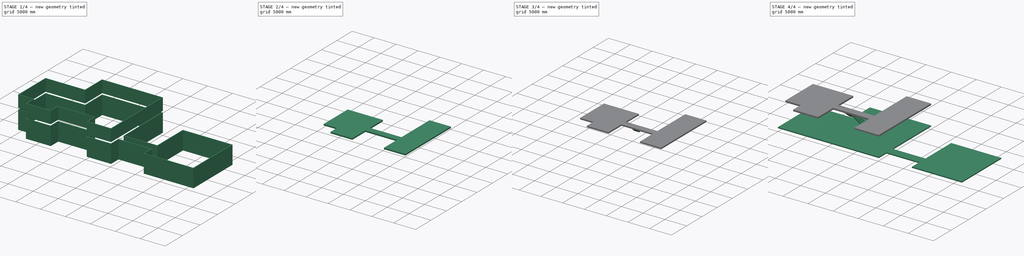
[diagram: build sequence overview — one tinted view per stage of 4, left to right]
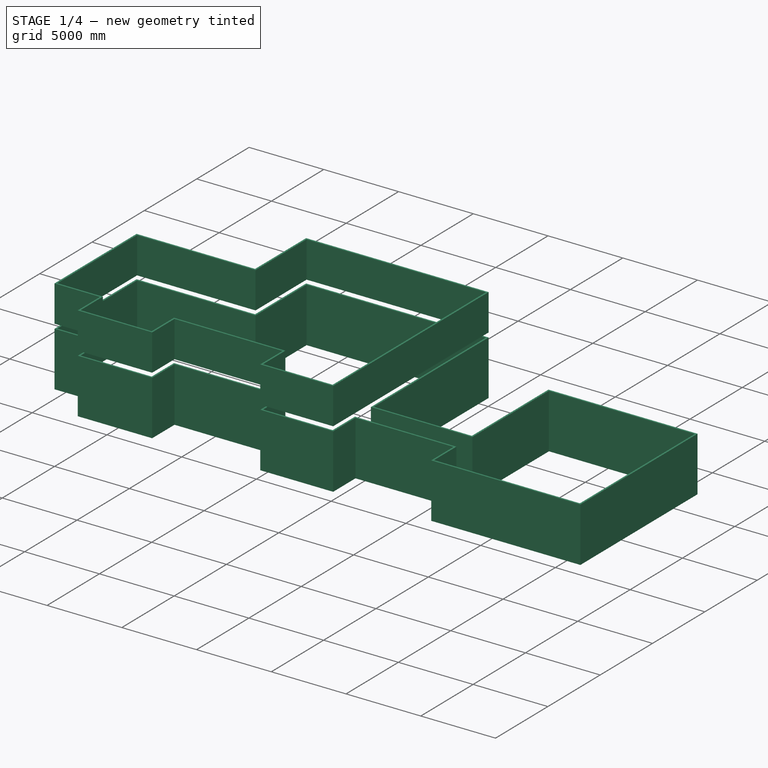
[diagram: stage 1 of 4 — iso view after this stage's code; geometry added in this stage tinted green]
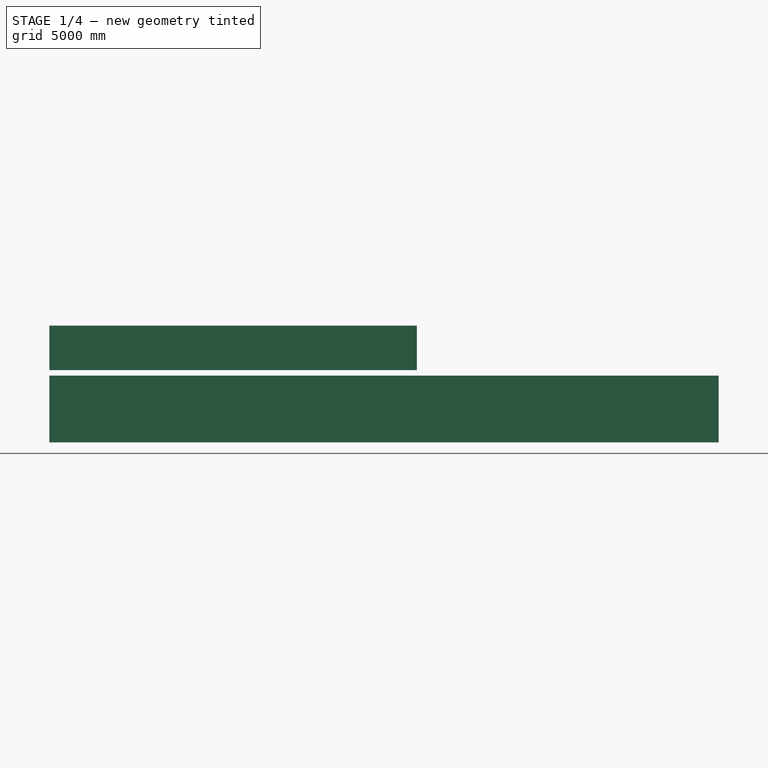
[diagram: stage 1 of 4 — front view after this stage's code; geometry added in this stage tinted green]
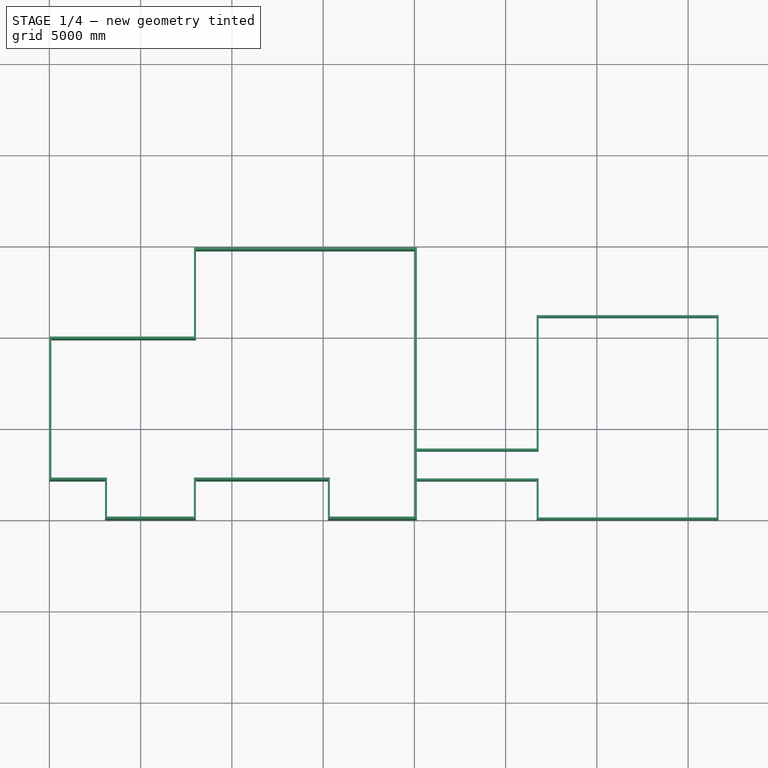
[diagram: stage 1 of 4 — top view after this stage's code; geometry added in this stage tinted green]
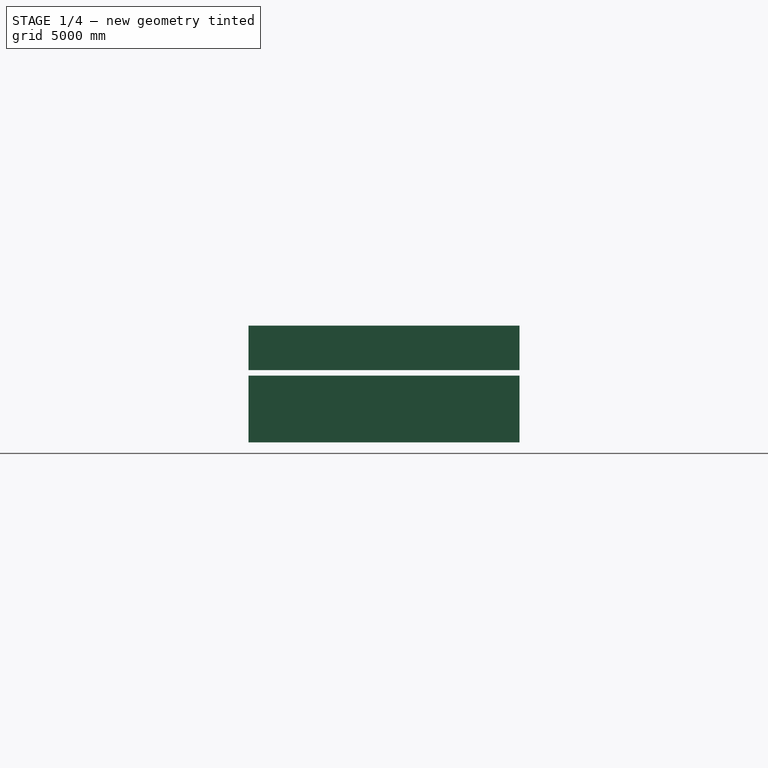
[diagram: stage 1 of 4 — right view after this stage's code; geometry added in this stage tinted green]
FCSTD DOCUMENT  (FreeCAD 1.0R39109 (Git))
Label: aeternum-estate
License: All rights reserved
LicenseURL: http://en.wikipedia.org/wiki/All_rights_reserved
objects: Sketcher::SketchObject×9, Part::FeaturePython×9, App::FeaturePython×8, App::GeometryPython×4, Spreadsheet::Sheet×1, App::DocumentObjectGroup×1
note: 31 computed .brp shape members not serialized (recipe doc carries the construction recipe); baked Part::Feature solids carry a one-line shape summary decoded from their .brp

FEATURE [Sketcher::SketchObject] Sketch003  label="ExteriorWallDimensions"
  ArcFitTolerance = 1e-06
  ExternalGeometry = -> [Sketch]
  FullyConstrained = false
  MakeInternals = false
  expr: Constraints[34] = <<Dimensions>>.mainRoomWidth
  expr: Constraints[41] = <<Dimensions>>.interiorWallThickness
  expr: Constraints[43] = <<Dimensions>>.guest2RoomWidth + <<Dimensions>>.bathWidth
  expr: Constraints[56] = <<Dimensions>>.bathWidth
  sketch-geometry (24):
    g0: LineSegment StartX=7924.8 StartY=14852.9 StartZ=0 EndX=7924.8 EndY=9976.1 EndZ=0
    g1: LineSegment StartX=7924.8 StartY=9976.1 StartZ=0 EndX=0 EndY=9976.1 EndZ=0
    g2: LineSegment StartX=8027.5 StartY=0 StartZ=0 EndX=8027.5 EndY=2133.6 EndZ=0
    g3: LineSegment StartX=8027.5 StartY=2133.6 StartZ=0 EndX=15257.8 EndY=2133.6 EndZ=0
    g4: LineSegment StartX=15257.8 StartY=2133.6 StartZ=0 EndX=15257.8 EndY=0 EndZ=0
    g5: LineSegment StartX=15257.8 StartY=0 StartZ=0 EndX=20134.6 EndY=0 EndZ=0
    g6: LineSegment StartX=20134.6 StartY=0 StartZ=0 EndX=20134.6 EndY=2133.6 EndZ=0
    g7: LineSegment StartX=20134.6 StartY=2133.6 StartZ=0 EndX=26696.8 EndY=2133.6 EndZ=0
    g8: LineSegment StartX=26696.8 StartY=2133.6 StartZ=0 EndX=26696.8 EndY=0 EndZ=0
    g9: LineSegment StartX=26696.8 StartY=0 StartZ=0 EndX=36672.9 EndY=0 EndZ=0
    g10: LineSegment StartX=36672.9 StartY=0 StartZ=0 EndX=36672.9 EndY=11195.3 EndZ=0
    g11: LineSegment StartX=36672.9 StartY=11195.3 StartZ=0 EndX=26696.8 EndY=11195.3 EndZ=0
    g12: LineSegment StartX=26696.8 StartY=11195.3 StartZ=0 EndX=26696.8 EndY=3880.1 EndZ=0
    g13: LineSegment StartX=26696.8 StartY=3880.1 StartZ=0 EndX=20134.6 EndY=3880.1 EndZ=0
    g14: LineSegment StartX=20134.6 StartY=3880.1 StartZ=0 EndX=20134.6 EndY=14852.9 EndZ=0
    g15: LineSegment StartX=20134.6 StartY=14852.9 StartZ=0 EndX=15257.8 EndY=14852.9 EndZ=0
    g16: LineSegment StartX=15257.8 StartY=14852.9 StartZ=0 EndX=7924.8 EndY=14852.9 EndZ=0
    g17: LineSegment [constr] StartX=15257.8 StartY=14852.9 StartZ=0 EndX=15257.8 EndY=2133.6 EndZ=0
    g18: LineSegment [constr] StartX=7924.8 StartY=9976.1 StartZ=0 EndX=20134.6 EndY=9976.1 EndZ=0
    g19: LineSegment [constr] StartX=7924.8 StartY=9976.1 StartZ=0 EndX=7916.24 EndY=0 EndZ=0
    g20: LineSegment StartX=0 StartY=9976.1 StartZ=0 EndX=0 EndY=2133.6 EndZ=0
    g21: LineSegment StartX=0 StartY=2133.6 StartZ=0 EndX=3048 EndY=2133.6 EndZ=0
    g22: LineSegment StartX=3048 StartY=2133.6 StartZ=0 EndX=3048 EndY=0 EndZ=0
    g23: LineSegment StartX=3048 StartY=0 StartZ=0 EndX=8027.5 EndY=0 EndZ=0
  constraints (60):
    c: Coincident(g0,g1)
    c: Coincident(g1,g-5)
    c: Coincident(g2,g3)
    c: Horizontal(g3)
    c: Coincident(g3,g4)
    c: PointOnObject(g4,g-3)
    c: Vertical(g4)
    c: Coincident(g4,g5)
    c: Coincident(g5,g-16)
    c: Coincident(g5,g6)
    c: Coincident(g6,g-16)
    c: Coincident(g6,g7)
    c: Coincident(g7,g-15)
    c: Coincident(g7,g8)
    c: Coincident(g8,g-14)
    c: Coincident(g8,g9)
    c: Coincident(g9,g-13)
    c: Coincident(g9,g10)
    c: Coincident(g10,g-12)
    c: Coincident(g10,g11)
    c: Coincident(g11,g-11)
    c: Coincident(g11,g12)
    c: Coincident(g12,g-10)
    c: Coincident(g12,g13)
    c: Coincident(g13,g-9)
    c: Coincident(g13,g14)
    c: Horizontal(g3,g6)
    c: Coincident(g15,g14)
    c: Horizontal(g15)
    c: Coincident(g16,g0)
    c: Horizontal(g16)
    c: Parallel(g0,g14)
    c: Coincident(g14,g-8)
    c: Coincident(g15,g16)
    c: DistanceX(g15,g15) = 4876.8
    c: Vertical(g15,g3)
    c: Coincident(g17,g15)
    c: Coincident(g17,g3)
    c: Coincident(g18,g0)
    c: PointOnObject(g18,g14)
    c: Horizontal(g18)
    c: DistanceX(g19,g2) = 111.252
    c: Parallel(g2,g4)
    c: DistanceX(g1,g0) = 7924.8
    c: Coincident(g19,g0)
    c: PointOnObject(g0,g-5)
    c: Coincident(g1,g20)
    c: PointOnObject(g20,g-4)
    c: Coincident(g20,g21)
    c: Horizontal(g21)
    c: Coincident(g21,g22)
    c: PointOnObject(g22,g-3)
    c: Vertical(g22)
    c: Coincident(g22,g23)
    c: Coincident(g23,g2)
    c: Horizontal(g23)
    c: DistanceX(g21,g21) = 3048
    c: Horizontal(g21,g2)
    c: DistanceY(g0,g0) = 4876.8
    c: DistanceY(g13,g18) = 6096
FEATURE [Part::FeaturePython] Wall  label="ExteriorWalls"  # Arch/BIM 166 (typed FeaturePython)
  Align = 1
  ArchSketchData = true
  Area = 4.60022e+08
  Base = -> Sketch003
  BlockHeight = 0
  BlockLength = 0
  CountBroken = 0
  CountEntire = 0
  Face = 0
  Height = 3657.6
  HorizontalArea = 0
  IfcData = attributes={"GlobalId": {"name": "GlobalId", "type": "IfcGloballyUniqueId", "is_enum": false, "enum_values": []}, "Description": {"... (+533 chars omitted),+1 more (map truncated)
  IfcType = 166
  Joint = 0
  Length = 125771
  MakeBlocks = false
  MoveBase = false
  MoveWithHost = false
  Normal = (0,0,0)
  OffsetFirst = 0
  OffsetSecond = 0
  PerimeterLength = 0
  PredefinedType = 0
  VerticalArea = 0
  Width = 111.252
  expr: Height = <<Dimensions>>.ceilingHeight1
  expr: Width = <<Dimensions>>.exteriorWallThickness
FEATURE [Sketcher::SketchObject] Sketch009  label="ExteriorWallDimensions2"
  ArcFitTolerance = 1e-06
  ExternalGeometry = -> [Sketch003]
  FullyConstrained = false
  MakeInternals = false
  Placement = pos=(0,0,3962.4) rot=(0,0,1;0rad)
  sketch-geometry (13):
    g0: LineSegment StartX=20134.6 StartY=14852.9 StartZ=0 EndX=15257.8 EndY=14852.9 EndZ=0
    g1: LineSegment StartX=15257.8 StartY=14852.9 StartZ=0 EndX=7924.8 EndY=14852.9 EndZ=0
    g2: LineSegment StartX=7924.8 StartY=14852.9 StartZ=0 EndX=7924.8 EndY=9976.1 EndZ=0
    g3: LineSegment StartX=7924.8 StartY=9976.1 StartZ=0 EndX=0 EndY=9976.1 EndZ=0
    g4: LineSegment StartX=8027.5 StartY=0 StartZ=0 EndX=8027.5 EndY=2133.6 EndZ=0
    g5: LineSegment StartX=8027.5 StartY=2133.6 StartZ=0 EndX=15257.8 EndY=2133.6 EndZ=0
    g6: LineSegment StartX=15257.8 StartY=2133.6 StartZ=0 EndX=15257.8 EndY=0 EndZ=0
    g7: LineSegment StartX=15257.8 StartY=0 StartZ=0 EndX=20134.6 EndY=0 EndZ=0
    g8: LineSegment StartX=3048 StartY=2133.6 StartZ=0 EndX=3048 EndY=0 EndZ=0
    g9: LineSegment StartX=3048 StartY=0 StartZ=0 EndX=8027.5 EndY=0 EndZ=0
    g10: LineSegment StartX=20134.6 StartY=0 StartZ=0 EndX=20134.6 EndY=14852.9 EndZ=0
    g11: LineSegment StartX=0 StartY=9976.1 StartZ=0 EndX=0 EndY=2133.6 EndZ=0
    g12: LineSegment StartX=0 StartY=2133.6 StartZ=0 EndX=3048 EndY=2133.6 EndZ=0
  constraints (25):
    c: Coincident(g-19,g0)
    c: Coincident(g0,g-4)
    c: Coincident(g0,g1)
    c: Coincident(g1,g-5)
    c: Coincident(g1,g2)
    c: Coincident(g2,g-6)
    c: Coincident(g2,g3)
    c: Coincident(g4,g-8)
    c: Coincident(g4,g5)
    c: Coincident(g5,g-9)
    c: Coincident(g5,g6)
    c: Coincident(g6,g-10)
    c: Coincident(g6,g7)
    c: Coincident(g7,g-11)
    c: Coincident(g8,g9)
    c: Coincident(g9,g4)
    c: Coincident(g4,g-7)
    c: Coincident(g10,g7)
    c: Coincident(g10,g0)
    c: Coincident(g-20,g8)
    c: Coincident(g3,g11)
    c: Coincident(g11,g-22)
    c: Vertical(g11)
    c: Coincident(g11,g12)
    c: Coincident(g12,g8)
FEATURE [Part::FeaturePython] Wall001  label="ExteriorWalls2"  # Arch/BIM 166 (typed FeaturePython)
  Align = 1
  ArchSketchData = true
  Area = 1.79947e+08
  Base = -> Sketch009
  BlockHeight = 0
  BlockLength = 0
  CountBroken = 0
  CountEntire = 0
  Face = 0
  Height = 2438.4
  HorizontalArea = 0
  IfcData = attributes={"GlobalId": {"name": "GlobalId", "type": "IfcGloballyUniqueId", "is_enum": false, "enum_values": []}, "Description": {"... (+533 chars omitted),+1 more (map truncated)
  IfcType = 166
  Joint = 0
  Length = 73797.2
  MakeBlocks = false
  MoveBase = false
  MoveWithHost = false
  Normal = (0,0,0)
  OffsetFirst = 0
  OffsetSecond = 0
  PerimeterLength = 0
  PredefinedType = 0
  VerticalArea = 0
  Width = 111.252
  expr: Width = <<Dimensions>>.exteriorWallThickness
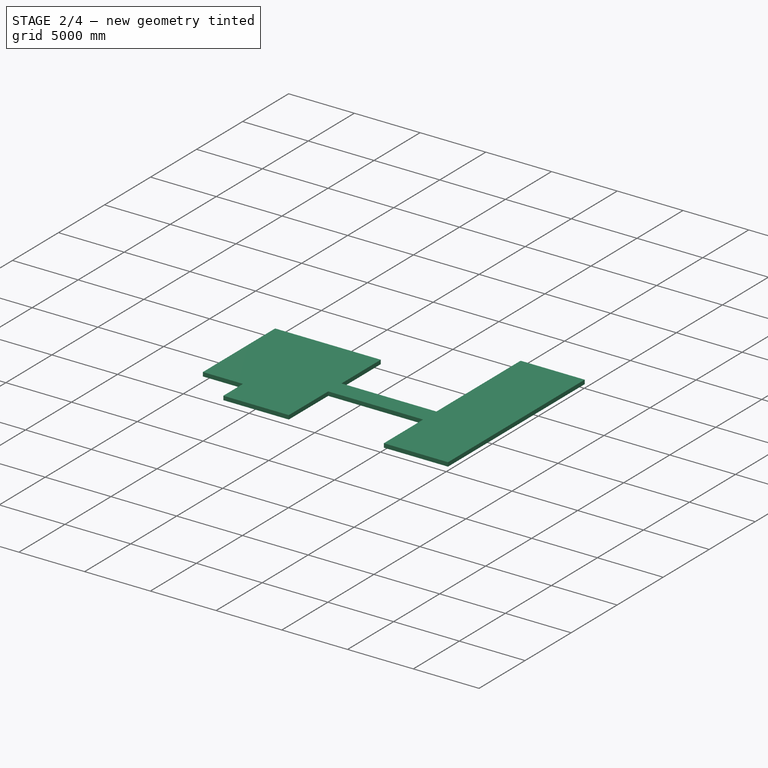
[diagram: stage 2 of 4 — iso view after this stage's code; geometry added in this stage tinted green]
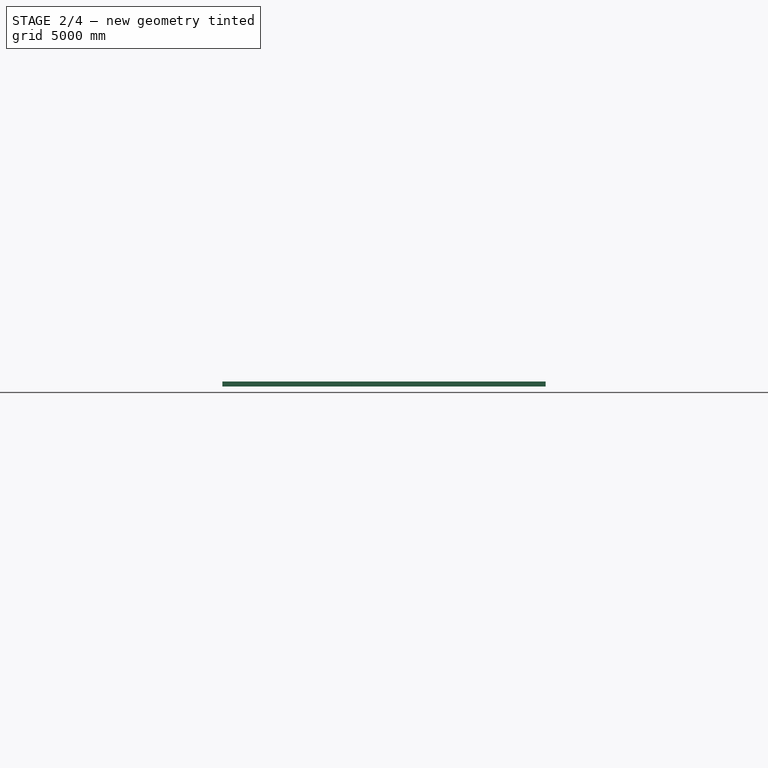
[diagram: stage 2 of 4 — front view after this stage's code; geometry added in this stage tinted green]
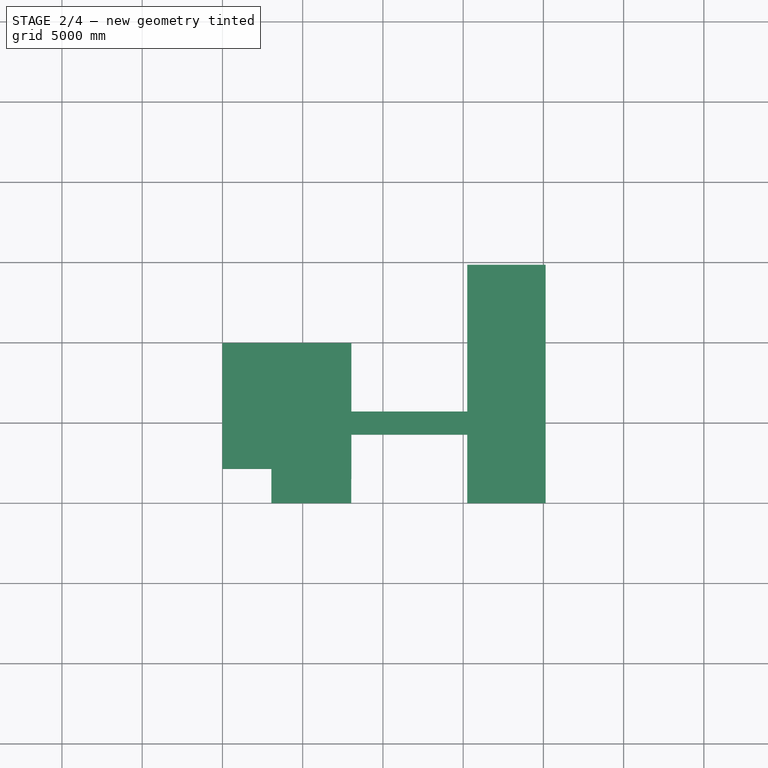
[diagram: stage 2 of 4 — top view after this stage's code; geometry added in this stage tinted green]
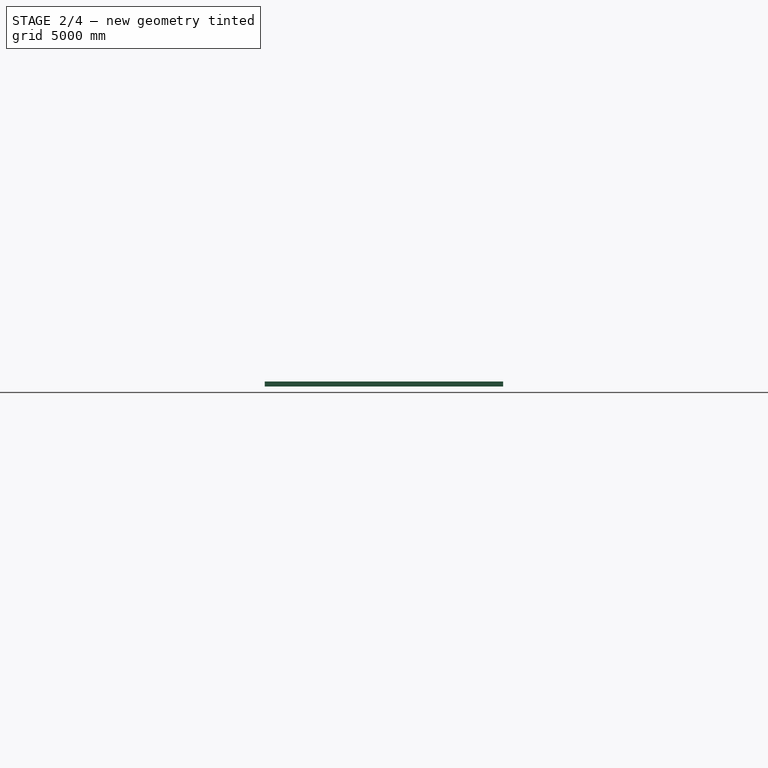
[diagram: stage 2 of 4 — right view after this stage's code; geometry added in this stage tinted green]
FEATURE [App::FeaturePython] Text001  # WARN: FeaturePython — macro-defined, semantics opaque (R4)
  Placement = pos=(11090.9,1029.65,0) rot=(0,0,1;0rad)
  Text = Front Porch
FEATURE [App::FeaturePython] Text  # WARN: FeaturePython — macro-defined, semantics opaque (R4)
  Placement = pos=(8874.09,9347,0) rot=(0,0,1;0rad)
  Text = Stairs
FEATURE [App::FeaturePython] Text002  # WARN: FeaturePython — macro-defined, semantics opaque (R4)
  Placement = pos=(2331.14,5091.19,0) rot=(0,0,1;0rad)
  Text = Bath
FEATURE [App::FeaturePython] Text003  # WARN: FeaturePython — macro-defined, semantics opaque (R4)
  Placement = pos=(2137.2,9014.65,0) rot=(0,0,1;0rad)
  Text = Closet
FEATURE [App::FeaturePython] Text004  # WARN: FeaturePython — macro-defined, semantics opaque (R4)
  Placement = pos=(1827.08,3427.98,0) rot=(0,0,1;0rad)
  Text = Closet2
FEATURE [App::FeaturePython] Text005  # WARN: FeaturePython — macro-defined, semantics opaque (R4)
  Placement = pos=(5152.1,8019.28,0) rot=(0,0,1;0rad)
  Text = Bedroom
FEATURE [App::FeaturePython] Text006  # WARN: FeaturePython — macro-defined, semantics opaque (R4)
  Placement = pos=(4696.58,2133.91,0) rot=(0,0,1;0rad)
  Text = Bedroom
FEATURE [App::FeaturePython] Text007  # WARN: FeaturePython — macro-defined, semantics opaque (R4)
  Placement = pos=(6778.4,3946.08,0) rot=(0,0,1;0rad)
  Text = Linen
FEATURE [Sketcher::SketchObject] Sketch010  label="InteriorWallDimensions2"
  ArcFitTolerance = 1e-06
  ExternalGeometry = -> [Wall001,Wall]
  FullyConstrained = false
  MakeInternals = false
  Placement = pos=(0,0,3962.4) rot=(0,0,1;0rad)
  sketch-geometry (27):
    g0: LineSegment [constr] StartX=3159.25 StartY=111.252 StartZ=0 EndX=3159.25 EndY=2244.85 EndZ=0
    g1: LineSegment [constr] StartX=7916.24 StartY=111.252 StartZ=0 EndX=7916.24 EndY=2244.85 EndZ=0
    g2: LineSegment [constr] StartX=3048 StartY=0 StartZ=0 EndX=7924.8 EndY=0 EndZ=0
    g3: LineSegment [constr] StartX=7924.8 StartY=0 StartZ=0 EndX=7924.8 EndY=4267.2 EndZ=0
    g4: LineSegment [constr] StartX=7924.8 StartY=4267.2 StartZ=0 EndX=3048 EndY=4267.2 EndZ=0
    g5: LineSegment [constr] StartX=3048 StartY=4267.2 StartZ=0 EndX=3048 EndY=0 EndZ=0
    g6: LineSegment StartX=3159.25 StartY=2244.85 StartZ=0 EndX=3159.25 EndY=4267.2 EndZ=0
    g7: LineSegment StartX=7924.8 StartY=4267.2 StartZ=0 EndX=7916.24 EndY=2244.85 EndZ=0
    g8: LineSegment StartX=3159.25 StartY=4267.2 StartZ=0 EndX=3159.25 EndY=9864.85 EndZ=0
    g9: LineSegment [constr] StartX=7924.8 StartY=9976.1 StartZ=0 EndX=3159.25 EndY=9976.1 EndZ=0
    g10: LineSegment [constr] StartX=3159.25 StartY=9976.1 StartZ=0 EndX=3159.25 EndY=5708.9 EndZ=0
    g11: LineSegment [constr] StartX=3159.25 StartY=5708.9 StartZ=0 EndX=7924.8 EndY=5708.9 EndZ=0
    g12: LineSegment [constr] StartX=7924.8 StartY=5708.9 StartZ=0 EndX=7924.8 EndY=9976.1 EndZ=0
    g13: LineSegment StartX=3159.25 StartY=5708.9 StartZ=0 EndX=7924.8 EndY=5708.9 EndZ=0
    g14: LineSegment StartX=3159.25 StartY=7806.04 StartZ=0 EndX=111.252 EndY=7806.04 EndZ=0
    g15: LineSegment StartX=15369 StartY=2244.85 StartZ=0 EndX=15369 EndY=14741.7 EndZ=0
    g16: LineSegment StartX=4195.23 StartY=4267.2 StartZ=0 EndX=4195.23 EndY=3392.54 EndZ=0
    g17: LineSegment StartX=4195.23 StartY=3392.54 StartZ=0 EndX=7921.1 EndY=3392.54 EndZ=0
    g18: LineSegment [constr] StartX=7924.8 StartY=5708.9 StartZ=0 EndX=15369 EndY=5708.9 EndZ=0
    g19: LineSegment [constr] StartX=7924.8 StartY=4267.2 StartZ=0 EndX=15369 EndY=4267.2 EndZ=0
    g20: LineSegment StartX=7924.8 StartY=9864.85 StartZ=0 EndX=7924.8 EndY=5708.9 EndZ=0
    g21: LineSegment StartX=15369 StartY=5708.9 StartZ=0 EndX=20023.3 EndY=5708.9 EndZ=0
    g22: LineSegment StartX=15369 StartY=10452.3 StartZ=0 EndX=20023.3 EndY=10452.3 EndZ=0
    g23: LineSegment [constr] StartX=3159.25 StartY=4267.2 StartZ=0 EndX=111.252 EndY=4267.2 EndZ=0
    g24: LineSegment StartX=7924.8 StartY=4267.2 StartZ=0 EndX=4195.23 EndY=4267.2 EndZ=0
    g25: LineSegment StartX=4195.23 StartY=4267.2 StartZ=0 EndX=3159.25 EndY=4267.2 EndZ=0
    g26: LineSegment StartX=3159.25 StartY=4267.2 StartZ=0 EndX=111.252 EndY=4267.2 EndZ=0
  constraints (69):
    c: Coincident(g0,g-7)
    c: Coincident(g1,g-4)
    c: Coincident(g2,g3)
    c: Coincident(g3,g4)
    c: Coincident(g4,g5)
    c: Coincident(g5,g2)
    c: Horizontal(g2)
    c: Vertical(g3)
    c: Vertical(g5)
    c: Distance(g3,g5) = 4876.8
    c: Distance(g2,g4) = 4267.2
    c: Coincident(g2,g-17)
    c: Coincident(g0,g6)
    c: PointOnObject(g6,g4)
    c: Vertical(g6)
    c: Coincident(g7,g1)
    c: Coincident(g7,g3)
    c: Coincident(g8,g6)
    c: PointOnObject(g8,g-18)
    c: Vertical(g8)
    c: Coincident(g9,g10)
    c: Coincident(g10,g11)
    c: Coincident(g11,g12)
    c: Coincident(g12,g9)
    c: Horizontal(g9)
    c: Horizontal(g11)
    c: Vertical(g10)
    c: Vertical(g12)
    c: Distance(g9,g11) = 4267.2
    c: Coincident(g9,g-19)
    c: PointOnObject(g10,g8)
    c: Coincident(g13,g10)
    c: Coincident(g13,g11)
    c: PointOnObject(g14,g8)
    c: PointOnObject(g14,g-8)
    c: Horizontal(g14)
    c: Coincident(g15,g-15)
    c: PointOnObject(g15,g-11)
    c: Vertical(g15)
    c: Vertical(g16)
    c: Coincident(g16,g17)
    c: PointOnObject(g17,g7)
    c: Horizontal(g17)
    c: Coincident(g18,g11)
    c: PointOnObject(g18,g15)
    c: Horizontal(g18)
    c: Coincident(g19,g3)
    c: PointOnObject(g19,g15)
    c: Horizontal(g19)
    c: PointOnObject(g20,g12)
    c: Coincident(g20,g11)
    c: Coincident(g21,g18)
    c: PointOnObject(g21,g-12)
    c: Horizontal(g21)
    c: PointOnObject(g22,g15)
    c: PointOnObject(g22,g-12)
    c: Horizontal(g22)
    c: Coincident(g23,g6)
    c: PointOnObject(g23,g-8)
    c: Horizontal(g23)
    c: Coincident(g3,g24)
    c: Coincident(g24,g16)
    c: Horizontal(g24)
    c: Coincident(g24,g25)
    c: Coincident(g25,g6)
    c: Horizontal(g25)
    c: Coincident(g25,g26)
    c: Coincident(g26,g23)
    c: PointOnObject(g20,g-18)
FEATURE [Part::FeaturePython] Wall002  label="InteriorWalls"  # Arch/BIM 166 (typed FeaturePython)
  Align = 1
  ArchSketchData = true
  Area = 1.35868e+08
  Base = -> Sketch010
  BlockHeight = 0
  BlockLength = 0
  CountBroken = 0
  CountEntire = 0
  Face = 0
  Height = 2438.4
  HorizontalArea = 0
  IfcData = attributes={"GlobalId": {"name": "GlobalId", "type": "IfcGloballyUniqueId", "is_enum": false, "enum_values": []}, "Description": {"... (+533 chars omitted),+1 more (map truncated)
  IfcType = 166
  Joint = 0
  Length = 55720.1
  MakeBlocks = false
  MoveBase = false
  MoveWithHost = false
  Normal = (0,0,0)
  OffsetFirst = 0
  OffsetSecond = 0
  PerimeterLength = 0
  PredefinedType = 0
  VerticalArea = 0
  Width = 111.252
  expr: Height = <<Dimensions>>.ceilingHeight2
  expr: Width = <<Dimensions>>.interiorWallThickness
FEATURE [App::DocumentObjectGroup] Group  label="MainStair"
  Group = -> [Sketch006,Sketch007,Sketch008,Stairs]
FEATURE [App::GeometryPython] BuildingPart001  label="Floor1"  # Arch/BIM 14 (typed FeaturePython)
  Area = 0
  CompositionType = 0
  Elevation = 0
  Group = -> [Sketch,Structure,Sketch003,Wall,Group]
  Height = 3657.6
  HeightPropagate = true
  IfcData = attributes={"GlobalId": {"name": "GlobalId", "type": "IfcGloballyUniqueId", "is_enum": false, "enum_values": []}, "Description": {"... (+845 chars omitted),+1 more (map truncated)
  IfcType = 14
  LevelOffset = 0
  LongName = Level
  MaterialsTable = Undefined=0,1,2,3
  OnlySolids = true
  expr: Elevation = .Placement.Base.z
  expr: Height = <<Dimensions>>.ceilingHeight1
FEATURE [Part::FeaturePython] Structure001  label="Slab001"  # Arch/BIM 118 (typed FeaturePython)
  Base = -> Sketch011
  BaseMirror = false
  BaseOffsetX = 0
  BaseOffsetY = 0
  BasePerpendicularToTool = false
  BaseRotation = 0
  ComputedLength = 304.8
  FaceMaker = 0
  Height = 304.8
  HorizontalArea = 1.56493e+08
  IfcData = attributes={"GlobalId": {"name": "GlobalId", "type": "IfcGloballyUniqueId", "is_enum": false, "enum_values": []}, "Description": {"... (+453 chars omitted),+1 more (map truncated)
  IfcType = 118
  Length = 0
  MoveBase = false
  MoveWithHost = false
  Nodes = (14) [(8036.05,9976.1,3962.4),(0,9976.1,3962.4),(0,2133.6,3962.4),(3048,2133.6,3962.4),(3048,0,3962.4),(8027.5,0,3962.4),(8036.05,4267.2,3962.4),+7 more]
  NodesOffset = 0
  Normal = (0,0,-1)
  PerimeterLength = 87035.3
  PredefinedType = 0
  ToolOffsetFirst = 0
  ToolOffsetLast = 0
  VerticalArea = 2.65283e+07
  Width = 100
  expr: Height = <<Dimensions>>.subfloorHeight
FEATURE [App::GeometryPython] BuildingPart003  label="Subfloor"  # Arch/BIM 14 (typed FeaturePython)
  Area = 0
  CompositionType = 0
  Elevation = 3657.6
  Group = -> [Sketch011,Structure001]
  Height = 0
  HeightPropagate = true
  IfcData = attributes={"GlobalId": {"name": "GlobalId", "type": "IfcGloballyUniqueId", "is_enum": false, "enum_values": []}, "Description": {"... (+874 chars omitted),+1 more (map truncated)
  IfcType = 14
  LevelOffset = 0
  LongName = Level
  MaterialsTable = Undefined=0
  OnlySolids = true
  Placement = pos=(0,0,3657.6) rot=(0,0,1;0rad)
  expr: .Placement.Base.z = <<Dimensions>>.ceilingHeight1
  expr: Elevation = .Placement.Base.z
FEATURE [App::GeometryPython] BuildingPart  label="MainHouse"  # Arch/BIM 10 (typed FeaturePython)
  Area = 0
  BuildingType = 0
  CompositionType = 0
  ElevationOfRefHeight = 0
  ElevationOfTerrain = 0
  Group = -> [BuildingPart001,BuildingPart002,BuildingPart003]
  Height = 0
  HeightPropagate = true
  IfcData = attributes={"GlobalId": {"name": "GlobalId", "type": "IfcGloballyUniqueId", "is_enum": false, "enum_values": []}, "Description": {"... (+989 chars omitted),+1 more (map truncated)
  IfcType = 10
  LevelOffset = 0
  LongName = Building
  MaterialsTable = Undefined=0,1,2,3,4,5,6,7
  OnlySolids = true
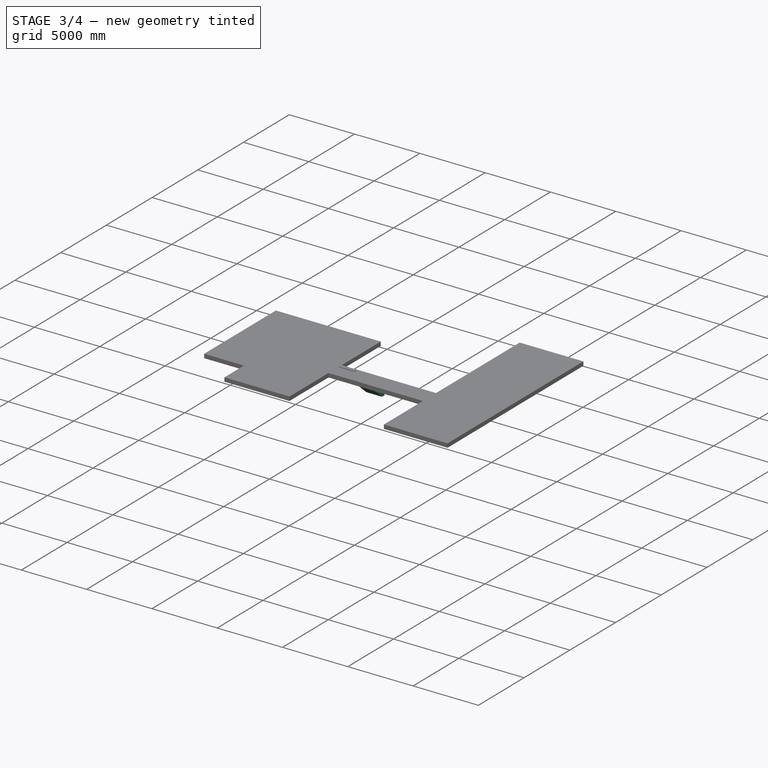
[diagram: stage 3 of 4 — iso view after this stage's code; geometry added in this stage tinted green]
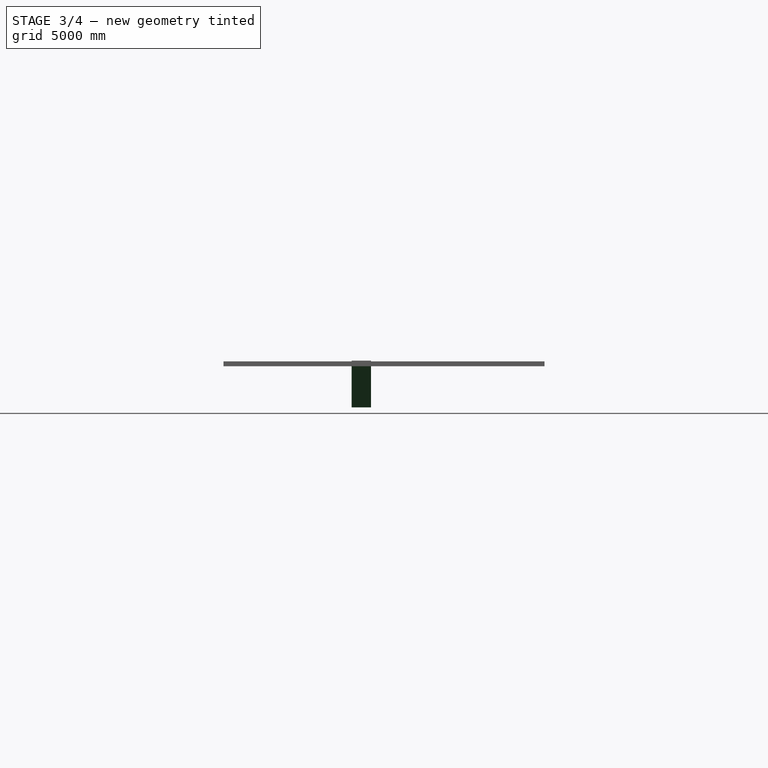
[diagram: stage 3 of 4 — front view after this stage's code; geometry added in this stage tinted green]
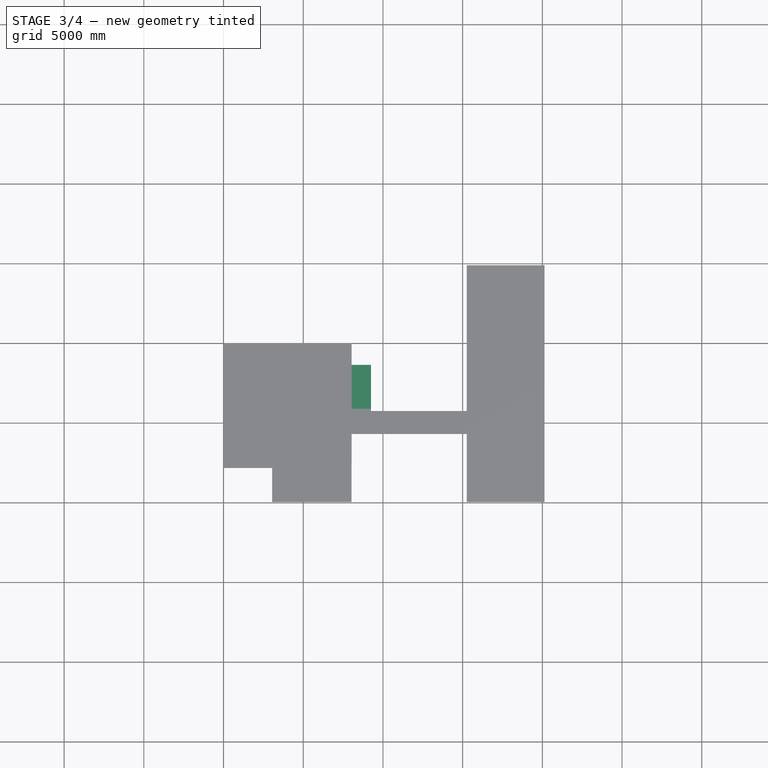
[diagram: stage 3 of 4 — top view after this stage's code; geometry added in this stage tinted green]
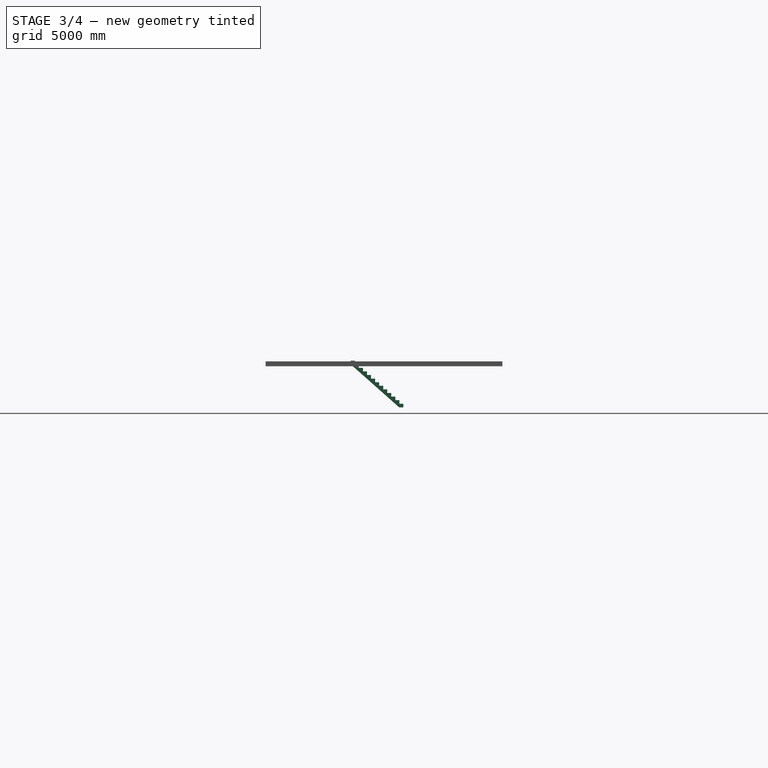
[diagram: stage 3 of 4 — right view after this stage's code; geometry added in this stage tinted green]
FEATURE [Sketcher::SketchObject] Sketch006  label="Flight1"
  ArcFitTolerance = 1e-06
  ExternalGeometry = -> [Wall,Sketch003]
  FullyConstrained = true
  MakeInternals = false
  Placement = pos=(-20379.2,19756.9,0) rot=(0,0,1;0rad)
  expr: Constraints[11] = <<Dimensions>>.interiorWallThickness
  expr: Constraints[12] = <<Dimensions>>.interiorWallThickness
  sketch-geometry (5):
    g0: LineSegment StartX=30904.5 StartY=-9892.04 StartZ=0 EndX=29634.5 EndY=-9892.04 EndZ=0
    g1: LineSegment [constr] StartX=28304 StartY=-9780.79 StartZ=0 EndX=28304 EndY=-9892.04 EndZ=0
    g2: LineSegment [constr] StartX=28304 StartY=-9892.04 StartZ=0 EndX=28415.3 EndY=-9892.04 EndZ=0
    g3: LineSegment [constr] StartX=28415.3 StartY=-9892.04 StartZ=0 EndX=28415.3 EndY=-9780.79 EndZ=0
    g4: LineSegment [constr] StartX=28415.3 StartY=-9780.79 StartZ=0 EndX=28304 EndY=-9780.79 EndZ=0
  constraints (15):
    c: DistanceX(g0,g0) = 1270
    c: Perpendicular(g-5,g0)
    c: Coincident(g1,g2)
    c: Coincident(g2,g3)
    c: Coincident(g3,g4)
    c: Coincident(g4,g1)
    c: Vertical(g1)
    c: Vertical(g3)
    c: Horizontal(g2)
    c: Horizontal(g4)
    c: Coincident(g1,g-5)
    c: DistanceX(g4,g4) = 111.252
    c: DistanceY(g1,g1) = 111.252
    c: Horizontal(g0,g2)
    c: DistanceX(g2,g0) = 1219.2
FEATURE [Sketcher::SketchObject] Sketch007  label="Landing1"
  ArcFitTolerance = 1e-06
  ExternalGeometry = -> [Sketch006]
  FullyConstrained = true
  MakeInternals = false
  Placement = pos=(-20379.2,19756.9,0) rot=(0,0,1;0rad)
  sketch-geometry (2):
    g0: LineSegment StartX=29634.5 StartY=-9892.04 StartZ=0 EndX=28415.3 EndY=-9892.04 EndZ=0
    g1: LineSegment StartX=28415.3 StartY=-9892.04 StartZ=0 EndX=28415.3 EndY=-11111.2 EndZ=0
  constraints (6):
    c: Coincident(g-3,g0)
    c: Horizontal(g0)
    c: Coincident(g0,g1)
    c: Vertical(g1)
    c: DistanceX(g0,g0) = 1219.2
    c: DistanceY(g1,g1) = 1219.2
FEATURE [Part::FeaturePython] Stairs001  # Arch/BIM 128 (typed FeaturePython)
  AbsTop = (10525.3,9864.85,1076.32)
  Align = 1
  Base = -> Sketch006
  BlondelRatio = 0
  ConnectionDownStartStairs = 0
  ConnectionEndStairsUp = 0
  DownSlabThickness = 150
  Flight = 0
  Height = 874.776
  HorizontalArea = 0
  IfcData = attributes={"GlobalId": {"name": "GlobalId", "type": "IfcGloballyUniqueId", "is_enum": false, "enum_values": []}, "Description": {"... (+760 chars omitted),+1 more (map truncated)
  IfcType = 128
  LandingDepth = 1219.2
  Landings = 0
  Length = 0
  MoveBase = false
  MoveWithHost = false
  Nosing = 0
  NumberOfSteps = 6
  OutlineLeft = (2) [(10525.3,8705.65,1041.29),(9191.75,8705.65,1938.23)]
  OutlineLeftAll = (2) [(10525.3,8705.65,1041.29),(9191.75,8705.65,1938.23)]
  OutlineRight = (2) [(9191.75,9804.85,1938.23),(10525.3,9804.85,1041.29)]
  OutlineRightAll = (2) [(9191.75,9804.85,1938.23),(10525.3,9804.85,1041.29)]
  PerimeterLength = 0
  PredefinedType = 0
  RailingHeightLeft = 900
  RailingHeightRight = 900
  RailingOffsetLeft = 60
  RailingOffsetRight = 60
  RiserHeight = 179.387
  RiserHeightEnforce = 179.387
  RiserThickness = 0
  StringerOverlap = 0
  StringerWidth = 0
  Structure = 1
  StructureOffset = 0
  StructureThickness = 150
  TreadDepth = 266.7
  TreadDepthEnforce = 266.7
  TreadThickness = 38.1
  UpSlabThickness = 150
  VerticalArea = 0
  Width = 1219.2
  Winders = 0
FEATURE [Part::FeaturePython] Stairs002  # Arch/BIM 128 (typed FeaturePython)
  AbsTop = (9255.25,9864.85,1076.32)
  Align = 1
  Base = -> Sketch007
  BlondelRatio = 0
  ConnectionDownStartStairs = 0
  ConnectionEndStairsUp = 0
  DownSlabThickness = 150
  Flight = 0
  Height = 1408.11
  HorizontalArea = 0
  IfcData = attributes={"GlobalId": {"name": "GlobalId", "type": "IfcGloballyUniqueId", "is_enum": false, "enum_values": []}, "Description": {"... (+760 chars omitted),+1 more (map truncated)
  IfcType = 128
  LandingDepth = 0
  Landings = 0
  LastSegment = -> Stairs001
  Length = 4498.98
  MoveBase = false
  MoveWithHost = false
  Nosing = 0
  NumberOfSteps = 1
  OutlineLeft = (3) [(9255.25,8705.65,1938.22),(9195.25,8705.65,1938.22),(9195.25,8645.65,1938.22)]
  OutlineLeftAll = (5) [(10525.3,8705.65,1041.29),(9191.75,8705.65,1938.23),(9255.25,8705.65,1938.22),(9195.25,8705.65,1938.22),(9195.25,8645.65,1938.22)]
  OutlineRight = (3) [(8096.05,8645.65,1938.22),(8096.05,9804.85,1938.22),(9255.25,9804.85,1938.22)]
  OutlineRightAll = (5) [(8096.05,8645.65,1938.22),(8096.05,9804.85,1938.22),(9255.25,9804.85,1938.22),(9191.75,9804.85,1938.23),(10525.3,9804.85,1041.29)]
  PerimeterLength = 0
  PredefinedType = 0
  RailingHeightLeft = 900
  RailingHeightRight = 900
  RailingOffsetLeft = 60
  RailingOffsetRight = 60
  RiserHeight = 0
  RiserHeightEnforce = 95.25
  RiserThickness = 0
  StringerOverlap = 0
  StringerWidth = 0
  Structure = 1
  StructureOffset = 0
  StructureThickness = 222.25
  TreadDepth = 0
  TreadDepthEnforce = 266.7
  TreadThickness = 38.1
  UpSlabThickness = 150
  VerticalArea = 0
  Width = 1219.2
  Winders = 0
FEATURE [App::GeometryPython] BuildingPart002  label="Floor2"  # Arch/BIM 14 (typed FeaturePython)
  Area = 0
  CompositionType = 0
  Elevation = 0
  Group = -> [Sketch009,Wall001,Sketch010,Wall002]
  Height = 0
  HeightPropagate = true
  IfcData = attributes={"GlobalId": {"name": "GlobalId", "type": "IfcGloballyUniqueId", "is_enum": false, "enum_values": []}, "Description": {"... (+859 chars omitted),+1 more (map truncated)
  IfcType = 14
  LevelOffset = 0
  LongName = Level
  MaterialsTable = Undefined=0,1,2
  OnlySolids = true
  Placement = pos=(0,0,3962.4) rot=(0,0,1;0rad)
  expr: .Placement.Base.z = <<Dimensions>>.ceilingHeight1 + <<Dimensions>>.subfloorHeight
FEATURE [Sketcher::SketchObject] Sketch011  label="SubfloorDimensions"
  ArcFitTolerance = 1e-06
  ExternalGeometry = -> [Wall001,Wall002]
  FullyConstrained = true
  MakeInternals = false
  Placement = pos=(0,0,3962.4) rot=(0,0,1;0rad)
  sketch-geometry (18):
    g0: LineSegment [constr] StartX=7924.8 StartY=9976.1 StartZ=0 EndX=8036.05 EndY=9976.1 EndZ=0
    g1: LineSegment [constr] StartX=15257.8 StartY=2244.85 StartZ=0 EndX=15257.8 EndY=2133.6 EndZ=0
    g2: LineSegment [constr] StartX=8027.5 StartY=2133.6 StartZ=0 EndX=8027.5 EndY=2244.38 EndZ=0
    g3: LineSegment [constr] StartX=15257.8 StartY=14741.7 StartZ=0 EndX=15257.8 EndY=14852.9 EndZ=0
    g4: LineSegment StartX=8036.05 StartY=9976.1 StartZ=0 EndX=0 EndY=9976.1 EndZ=0
    g5: LineSegment StartX=0 StartY=9976.1 StartZ=0 EndX=0 EndY=2133.6 EndZ=0
    g6: LineSegment StartX=0 StartY=2133.6 StartZ=0 EndX=3048 EndY=2133.6 EndZ=0
    g7: LineSegment StartX=3048 StartY=2133.6 StartZ=0 EndX=3048 EndY=0 EndZ=0
    g8: LineSegment StartX=3048 StartY=0 StartZ=0 EndX=8027.5 EndY=0 EndZ=0
    g9: LineSegment StartX=8027.5 StartY=0 StartZ=0 EndX=8036.05 EndY=4267.2 EndZ=0
    g10: LineSegment StartX=8036.05 StartY=4267.2 StartZ=0 EndX=15257.8 EndY=4267.2 EndZ=0
    g11: LineSegment StartX=15257.8 StartY=4267.2 StartZ=0 EndX=15257.8 EndY=0 EndZ=0
    g12: LineSegment StartX=15257.8 StartY=0 StartZ=0 EndX=20134.6 EndY=0 EndZ=0
    g13: LineSegment StartX=20134.6 StartY=0 StartZ=0 EndX=20134.6 EndY=14852.9 EndZ=0
    g14: LineSegment StartX=20134.6 StartY=14852.9 StartZ=0 EndX=15257.8 EndY=14852.9 EndZ=0
    g15: LineSegment StartX=15257.8 StartY=14852.9 StartZ=0 EndX=15257.8 EndY=5708.9 EndZ=0
    g16: LineSegment StartX=15257.8 StartY=5708.9 StartZ=0 EndX=8036.05 EndY=5708.9 EndZ=0
    g17: LineSegment StartX=8036.05 StartY=5708.9 StartZ=0 EndX=8036.05 EndY=9976.1 EndZ=0
  constraints (40):
    c: Coincident(g0,g-3)
    c: PointOnObject(g0,g-4)
    c: Horizontal(g0)
    c: Coincident(g1,g-13)
    c: Coincident(g1,g-14)
    c: Coincident(g2,g-10)
    c: Coincident(g2,g-11)
    c: Coincident(g3,g-13)
    c: PointOnObject(g3,g-17)
    c: Vertical(g3)
    c: Coincident(g0,g4)
    c: Coincident(g4,g5)
    c: Coincident(g5,g-7)
    c: Coincident(g5,g6)
    c: Coincident(g6,g-8)
    c: Coincident(g6,g7)
    c: Coincident(g7,g-9)
    c: Coincident(g7,g8)
    c: Coincident(g8,g-10)
    c: Coincident(g8,g9)
    c: Coincident(g9,g-12)
    c: Coincident(g9,g10)
    c: PointOnObject(g10,g-13)
    c: Horizontal(g10)
    c: Coincident(g10,g11)
    c: Coincident(g11,g-15)
    c: Coincident(g11,g12)
    c: Coincident(g12,g-16)
    c: Coincident(g12,g13)
    c: Coincident(g13,g-17)
    c: Coincident(g13,g14)
    c: Coincident(g14,g3)
    c: Coincident(g14,g15)
    c: PointOnObject(g15,g-13)
    c: Coincident(g15,g16)
    c: Coincident(g16,g-5)
    c: Horizontal(g16)
    c: Coincident(g16,g17)
    c: Coincident(g17,g0)
    c: Coincident(g4,g-6)
FEATURE [Sketcher::SketchObject] Sketch008  label="Flight2"
  ArcFitTolerance = 1e-06
  ExternalGeometry = -> [Sketch007,Sketch011]
  FullyConstrained = true
  MakeInternals = false
  Placement = pos=(-20379.2,19756.9,0) rot=(0,0,1;0rad)
  sketch-geometry (1):
    g0: LineSegment StartX=28415.3 StartY=-11111.2 StartZ=0 EndX=28415.3 EndY=-14048 EndZ=0
  constraints (2):
    c: Coincident(g0,g-3)
    c: Coincident(g0,g-4)
FEATURE [Part::FeaturePython] Stairs003  # Arch/BIM 128 (typed FeaturePython)
  AbsTop = (8036.05,8645.65,4232.27)
  Align = 1
  Base = -> Sketch008
  BlondelRatio = 0
  ConnectionDownStartStairs = 0
  ConnectionEndStairsUp = 0
  DownSlabThickness = 149.225
  Flight = 0
  Height = 2743.2
  HorizontalArea = 0
  IfcData = attributes={"GlobalId": {"name": "GlobalId", "type": "IfcGloballyUniqueId", "is_enum": false, "enum_values": []}, "Description": {"... (+760 chars omitted),+1 more (map truncated)
  IfcType = 128
  LandingDepth = 0
  Landings = 0
  LastSegment = -> Stairs002
  Length = 4498.98
  MoveBase = false
  MoveWithHost = false
  Nosing = 0
  NumberOfSteps = 14
  OutlineLeft = (2) [(9195.25,8645.65,2163.65),(9195.25,5343.65,5094.18)]
  OutlineLeftAll = (7) [(10525.3,8705.65,1041.29),(9191.75,8705.65,1938.23),(9255.25,8705.65,1938.22),(9195.25,8705.65,1938.22),(9195.25,8645.65,1938.22),+2 more]
  OutlineRight = (2) [(8096.05,5343.65,5094.18),(8096.05,8645.65,2163.65)]
  OutlineRightAll = (7) [(8096.05,5343.65,5094.18),(8096.05,8645.65,2163.65),(8096.05,8645.65,1938.22),(8096.05,9804.85,1938.22),(9255.25,9804.85,1938.22),+2 more]
  PerimeterLength = 0
  PredefinedType = 0
  RailingHeightLeft = 900
  RailingHeightRight = 900
  RailingOffsetLeft = 60
  RailingOffsetRight = 60
  RiserHeight = 225.425
  RiserHeightEnforce = 225.425
  RiserThickness = 0
  StringerOverlap = 0
  StringerWidth = 0
  Structure = 1
  StructureOffset = 0
  StructureThickness = 149.225
  TreadDepth = 254
  TreadDepthEnforce = 254
  TreadThickness = 38.1
  UpSlabThickness = 149.225
  VerticalArea = 0
  Width = 1219.2
  Winders = 0
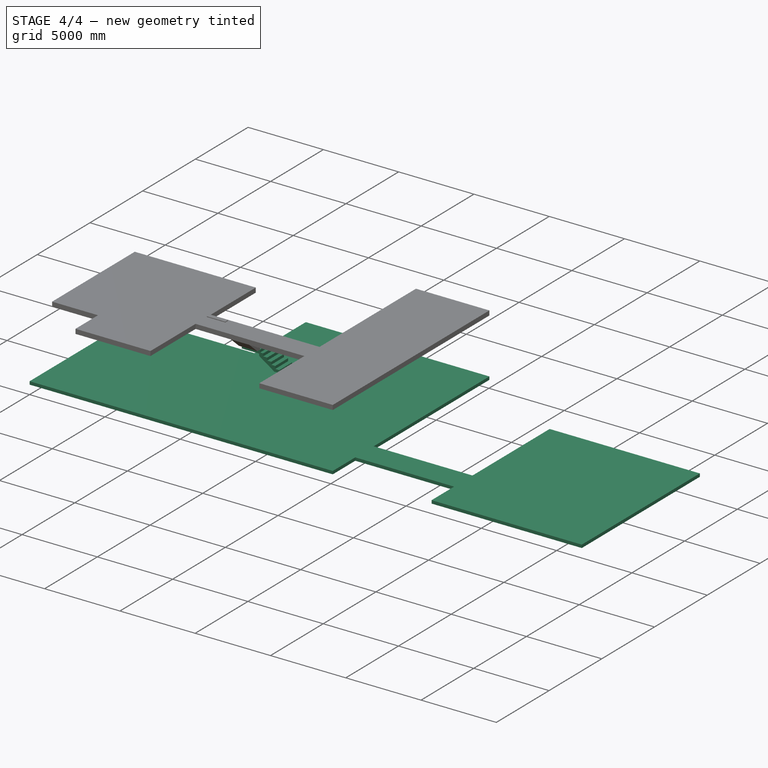
[diagram: stage 4 of 4 — iso view after this stage's code; geometry added in this stage tinted green]
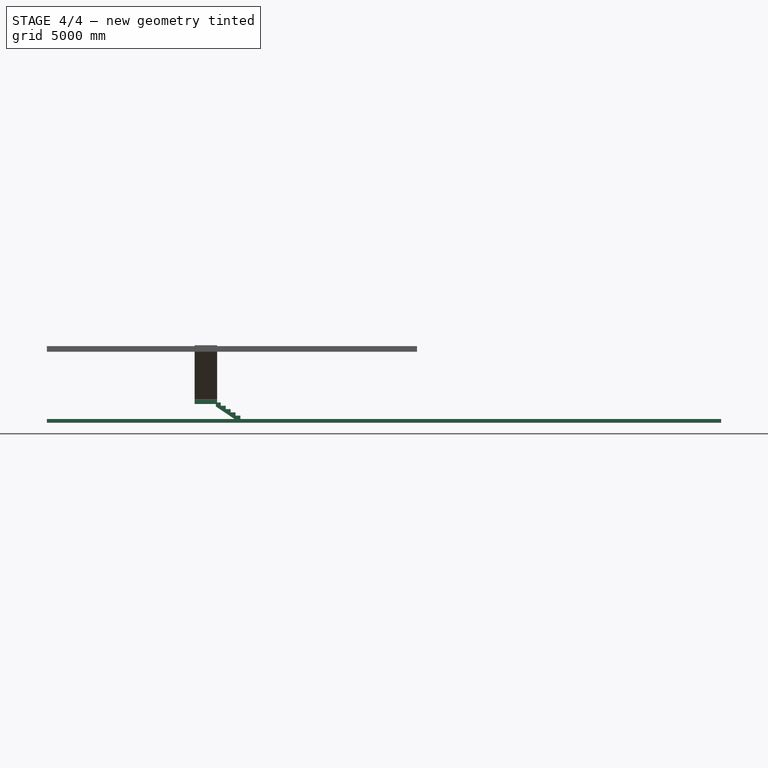
[diagram: stage 4 of 4 — front view after this stage's code; geometry added in this stage tinted green]
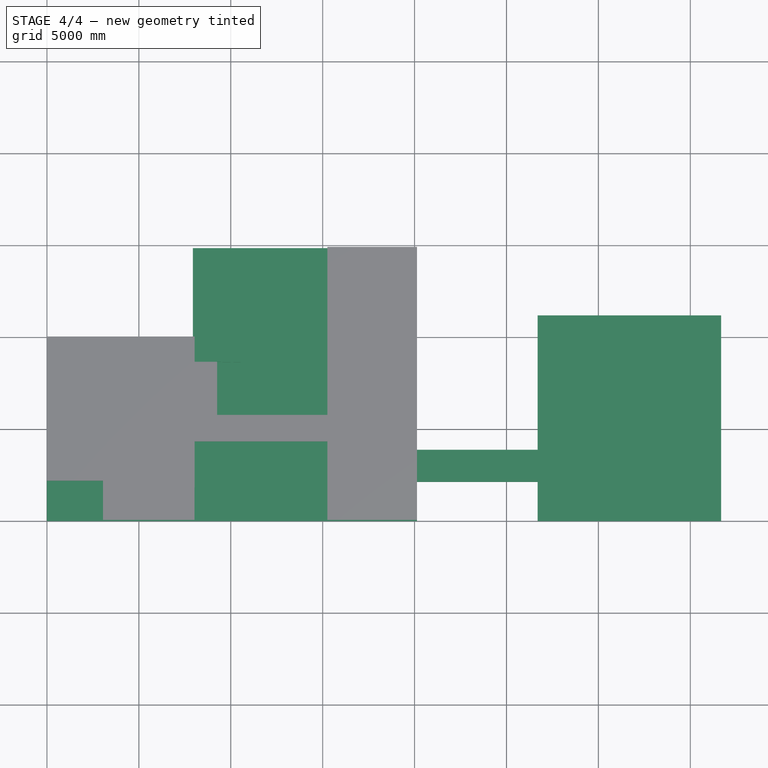
[diagram: stage 4 of 4 — top view after this stage's code; geometry added in this stage tinted green]
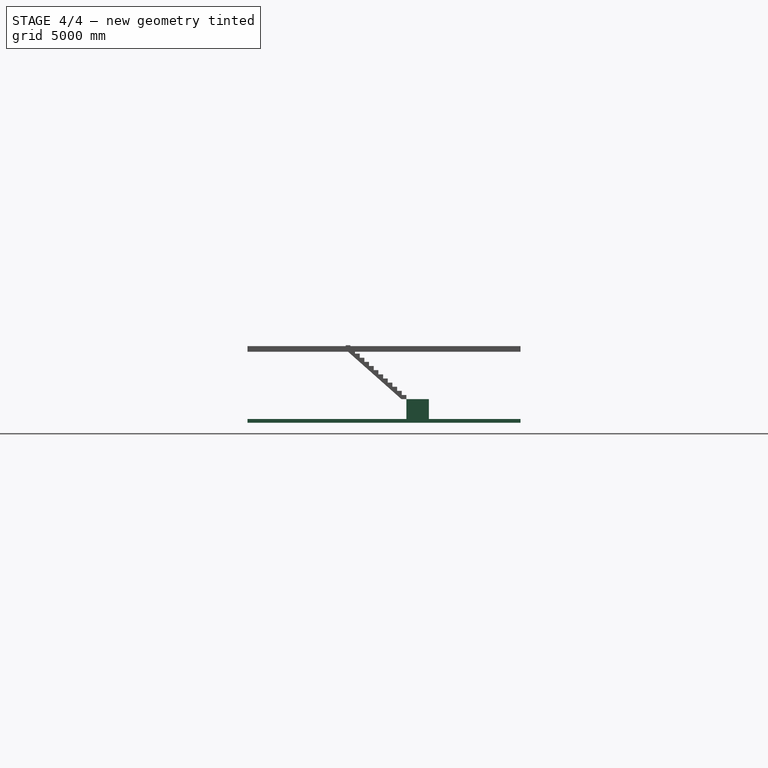
[diagram: stage 4 of 4 — right view after this stage's code; geometry added in this stage tinted green]
FEATURE [Spreadsheet::Sheet] Spreadsheet  label="Dimensions"
  cells = A1='Garage Depth; B1(garageDepth)==36 ft; D1='First Floor Ceiling Height; E1(ceilingHeight1)==12 ft; G1='Bridge Length; H1(bridgeLength)==20 ft; J1='Main House Width; K1(mainHouseWidth)==54 ft; M1='Main Room Width; N1(mainRoomWidth)==16 '; P1='Hall Width; Q1(hallWidth)==4 '; S1='Guest Room #1 Width; T1(guest1RoomWidth)==16 '; V1='Guest Room #2 Width; W1(guest2RoomWidth)==16 '; Y1='Bath Width; Z1(bathWidth)==10 '; A2='Garage Width; B2(garageWidth)==32 ft; D2='Second Floor Ceiling Height; E2(ceilingHeight2)==8 '; G2='Bridge Width; H2(bridgeWidth)==10 ft; J2='Main House Length; K2(mainHouseLength)==42 '; M2='Main Room Length; N2(mainRoomLength)==16 '; P2='Foyer Opening Length; Q2(foyerOpeningLength)==14 '; S2='Guest Room #1 Length; T2(guest1RoomLength)==14 '; V2='Guest Room #2 Length; W2(guest2RoomLength)==14 '; Y2='Bath Length; Z2(bathLength)==14 '; A3='Garage Ceiling Height; B3(garageCeilingHeight)==10 ft; D3='Subfloor Height; E3(subfloorHeight)==1 '; G3='Bridge To Front; H3(bridgeToFront)==4 ft; J3='Main House Floor Area; K3==mainHouseWidth * mainHouseLength; M3='Main Bath Length; N3(mainBathLength)==14 '; P3='Linen Closet Depth; Q3(linenClosetDepth)==2 '; S3='Guest Room #1 Closet Width; T3(guest1ClosetWidth)==12 '; V3='Guest Room #2 Closet Depth; W3(guest2RoomClosetDepth)==5 '; A4='Apartment Floor Area; B4==garageDepth * garageWidth; M4='Main Closet Length; N4(MainClosetLenth)==12 '; P4='Laundry And Half-bath Depth; Q4(laundryAndHalfBathDepth)==5 '; S4='Guest Room #1 Closet Depth; T4(guest1ClosetDepth)==5 '; Y4='Tub Width; Z4(bathTubWidth)==32 "; J5='Main House West Side Length; K5(mainHouseWestSideLength)==guest1RoomLength + hallWidth + guest2RoomLength; Y5='Tub Length; Z5(bathTubLength)==60 "; M6='Front Porch Width; N6(frontPorchWidth)==16 '; Y6='Shower/Tub Wall Thickness; Z6(bathShowerTubWallThickness)==6 "; J7='Drywall Thickness; K7(dryWallThickness)==0.38 "; M7='Living Room Width; N7(livingRoomWidth)==24 '; Y7='Shower Length; Z7(bathShowerLength)==60 "; J8='Siding Thickness; Y8='Toilet Width; Z8(bathToiletWidth)==20 "; J9='Ceiling Drywall Thickness; K9==0.5 "; Y9='Counter Depth; Z9(bathCounterDepth)==24 "; D10='Stairs Total Run; E10(stairsTotalRun)==18 ' + 4 "; D11='Stairs Stringer Height; E11(stairsStringerHeight)==12 ' + 5 "; J11='Stud Width; K11(studWidth)==4 "; D12='Stairs Width; E12(stairsWidth)==4 '; J12='Stud Thickness; K12(studThickness)==2 "; D13='Stair Landing Depth; E13(stairsLandingDepth)==4 '; J14='Ceiling Thickness; J15='Exterior Wall Thickness; K15(exteriorWallThickness)==studWidth + dryWallThickness; J16='Interior Wall Thickness; K16(interiorWallThickness)==studWidth + dryWallThickness; J17='Slab Thickness; K17(slabThickness)==8 "
FEATURE [Sketcher::SketchObject] Sketch002
  ArcFitTolerance = 1e-06
  FullyConstrained = false
  MakeInternals = false
  expr: Constraints[17] = <<Dimensions>>.mainBathLength
  expr: Constraints[225] = 28 ' + <<Dimensions>>.exteriorWallThickness * 2
  expr: Constraints[226] = 42 ' + <<Dimensions>>.exteriorWallThickness
  expr: Constraints[228] = 5 ' + <<Dimensions>>.exteriorWallThickness * 2
  expr: Constraints[229] = <<Dimensions>>.guest1RoomWidth
  expr: Constraints[230] = <<Dimensions>>.guest2RoomWidth
  expr: Constraints[245] = <<Dimensions>>.guest2RoomClosetDepth
  expr: Constraints[246] = <<Dimensions>>.guest1ClosetDepth
  expr: Constraints[247] = <<Dimensions>>.garageWidth + <<Dimensions>>.exteriorWallThickness * 2
  expr: Constraints[248] = <<Dimensions>>.garageDepth + <<Dimensions>>.exteriorWallThickness * 2
  expr: Constraints[249] = <<Dimensions>>.mainHouseWestSideLength + <<Dimensions>>.exteriorWallThickness * 2
  expr: Constraints[25] = <<Dimensions>>.MainClosetLenth
  expr: Constraints[58] = <<Dimensions>>.bathWidth
  expr: Constraints[59] = <<Dimensions>>.bathLength
  expr: Constraints[60] = <<Dimensions>>.guest1RoomLength
  expr: Constraints[61] = <<Dimensions>>.guest2RoomLength
  expr: Constraints[8] = <<Dimensions>>.mainRoomLength
  expr: Constraints[9] = <<Dimensions>>.mainRoomWidth
  sketch-geometry (104):
    g0: LineSegment StartX=73214.2 StartY=-49687.4 StartZ=0 EndX=73214.2 EndY=-54564.2 EndZ=0
    g1: LineSegment StartX=73214.2 StartY=-54564.2 StartZ=0 EndX=78091 EndY=-54564.2 EndZ=0
    g2: LineSegment StartX=78091 StartY=-54564.2 StartZ=0 EndX=78091 EndY=-49687.4 EndZ=0
    g3: LineSegment StartX=78091 StartY=-49687.4 StartZ=0 EndX=73214.2 EndY=-49687.4 EndZ=0
    g4: LineSegment StartX=78091 StartY=-49687.4 StartZ=0 EndX=78091 EndY=-45420.2 EndZ=0
    g5: LineSegment StartX=78091 StartY=-45420.2 StartZ=0 EndX=73214.2 EndY=-45420.2 EndZ=0
    g6: LineSegment StartX=73214.2 StartY=-49687.4 StartZ=0 EndX=73214.2 EndY=-45420.2 EndZ=0
    g7: LineSegment StartX=78091 StartY=-45420.2 StartZ=0 EndX=78091 EndY=-41762.6 EndZ=0
    g8: LineSegment StartX=78091 StartY=-41762.6 StartZ=0 EndX=73214.2 EndY=-41762.6 EndZ=0
    g9: LineSegment StartX=73214.2 StartY=-41762.6 StartZ=0 EndX=73214.2 EndY=-45420.2 EndZ=0
    g10: LineSegment StartX=60417.9 StartY=-44758.8 StartZ=0 EndX=60417.9 EndY=-49026 EndZ=0
    g11: LineSegment StartX=60417.9 StartY=-49026 StartZ=0 EndX=65294.7 EndY=-49026 EndZ=0
    g12: LineSegment StartX=65294.7 StartY=-49026 StartZ=0 EndX=65294.7 EndY=-44758.8 EndZ=0
    g13: LineSegment StartX=65294.7 StartY=-44758.8 StartZ=0 EndX=60417.9 EndY=-44758.8 EndZ=0
    g14: LineSegment StartX=48149.6 StartY=-47684.9 StartZ=0 EndX=48149.6 EndY=-51952.1 EndZ=0
    g15: LineSegment StartX=48149.6 StartY=-51952.1 StartZ=0 EndX=53026.4 EndY=-51952.1 EndZ=0
    g16: LineSegment StartX=53026.4 StartY=-51952.1 StartZ=0 EndX=53026.4 EndY=-47684.9 EndZ=0
    g17: LineSegment StartX=53026.4 StartY=-47684.9 StartZ=0 EndX=48149.6 EndY=-47684.9 EndZ=0
    g18: LineSegment StartX=59564.4 StartY=-53119.5 StartZ=0 EndX=59564.4 EndY=-57386.7 EndZ=0
    g19: LineSegment StartX=59564.4 StartY=-57386.7 StartZ=0 EndX=62612.4 EndY=-57386.7 EndZ=0
    g20: LineSegment StartX=62612.4 StartY=-57386.7 StartZ=0 EndX=62612.4 EndY=-53119.5 EndZ=0
    g21: LineSegment StartX=62612.4 StartY=-53119.5 StartZ=0 EndX=59564.4 EndY=-53119.5 EndZ=0
    g22: LineSegment StartX=10882.9 StartY=-12225 StartZ=0 EndX=10882.9 EndY=-13378.7 EndZ=0
    g23: LineSegment StartX=10882.9 StartY=-13378.7 StartZ=0 EndX=12217.5 EndY=-13378.7 EndZ=0
    g24: LineSegment StartX=12217.5 StartY=-13378.7 StartZ=0 EndX=12217.5 EndY=-12225 EndZ=0
    g25: LineSegment StartX=12217.5 StartY=-12225 StartZ=0 EndX=10882.9 EndY=-12225 EndZ=0
    g26: LineSegment StartX=55486.5 StartY=-16306.8 StartZ=0 EndX=55486.5 EndY=-20574 EndZ=0
    g27: LineSegment StartX=55486.5 StartY=-20574 StartZ=0 EndX=59753.7 EndY=-20574 EndZ=0
    g28: LineSegment StartX=59753.7 StartY=-20574 StartZ=0 EndX=59753.7 EndY=-16306.8 EndZ=0
    g29: LineSegment StartX=59753.7 StartY=-16306.8 StartZ=0 EndX=55486.5 EndY=-16306.8 EndZ=0
    g30: LineSegment StartX=58395.4 StartY=-22852.7 StartZ=0 EndX=58395.4 EndY=-27119.9 EndZ=0
    g31: LineSegment StartX=58395.4 StartY=-27119.9 StartZ=0 EndX=62662.6 EndY=-27119.9 EndZ=0
    g32: LineSegment StartX=62662.6 StartY=-27119.9 StartZ=0 EndX=62662.6 EndY=-22852.7 EndZ=0
    g33: LineSegment StartX=62662.6 StartY=-22852.7 StartZ=0 EndX=58395.4 EndY=-22852.7 EndZ=0
    g34: LineSegment StartX=53994.7 StartY=-22890.2 StartZ=0 EndX=53994.7 EndY=-27157.4 EndZ=0
    g35: LineSegment StartX=53994.7 StartY=-27157.4 StartZ=0 EndX=57042.7 EndY=-27157.4 EndZ=0
    g36: LineSegment StartX=57042.7 StartY=-27157.4 StartZ=0 EndX=57042.7 EndY=-22890.2 EndZ=0
    g37: LineSegment StartX=57042.7 StartY=-22890.2 StartZ=0 EndX=53994.7 EndY=-22890.2 EndZ=0
    g38: LineSegment StartX=58872.8 StartY=-63778 StartZ=0 EndX=58872.8 EndY=-66826 EndZ=0
    g39: LineSegment StartX=58872.8 StartY=-66826 StartZ=0 EndX=63140 EndY=-66826 EndZ=0
    g40: LineSegment StartX=63140 StartY=-66826 StartZ=0 EndX=63140 EndY=-63778 EndZ=0
    g41: LineSegment StartX=63140 StartY=-63778 StartZ=0 EndX=58872.8 EndY=-63778 EndZ=0
    g42: LineSegment StartX=76300.8 StartY=-5120.63 StartZ=0 EndX=76300.8 EndY=-9387.83 EndZ=0
    g43: LineSegment StartX=76300.8 StartY=-9387.83 StartZ=0 EndX=81177.6 EndY=-9387.83 EndZ=0
    g44: LineSegment StartX=81177.6 StartY=-9387.83 StartZ=0 EndX=81177.6 EndY=-5120.63 EndZ=0
    g45: LineSegment StartX=81177.6 StartY=-5120.63 StartZ=0 EndX=76300.8 EndY=-5120.63 EndZ=0
    g46: LineSegment StartX=29300.5 StartY=-41005.6 StartZ=0 EndX=29300.5 EndY=-45882.4 EndZ=0
    g47: LineSegment StartX=29300.5 StartY=-45882.4 StartZ=0 EndX=33567.7 EndY=-45882.4 EndZ=0
    g48: LineSegment StartX=33567.7 StartY=-45882.4 StartZ=0 EndX=33567.7 EndY=-41005.6 EndZ=0
    g49: LineSegment StartX=33567.7 StartY=-41005.6 StartZ=0 EndX=29300.5 EndY=-41005.6 EndZ=0
    g50: LineSegment StartX=65554.6 StartY=-16309.9 StartZ=0 EndX=65554.6 EndY=-20577.1 EndZ=0
    g51: LineSegment StartX=65554.6 StartY=-20577.1 StartZ=0 EndX=69821.8 EndY=-20577.1 EndZ=0
    g52: LineSegment StartX=69821.8 StartY=-20577.1 StartZ=0 EndX=69821.8 EndY=-16309.9 EndZ=0
    g53: LineSegment StartX=69821.8 StartY=-16309.9 StartZ=0 EndX=65554.6 EndY=-16309.9 EndZ=0
    g54: LineSegment StartX=65516.4 StartY=-22666.8 StartZ=0 EndX=65516.4 EndY=-20740.7 EndZ=0
    g55: LineSegment StartX=65516.4 StartY=-20740.7 StartZ=0 EndX=53985.7 EndY=-20740.7 EndZ=0
    g56: LineSegment StartX=53985.7 StartY=-20740.7 StartZ=0 EndX=53985.7 EndY=-22666.8 EndZ=0
    g57: LineSegment StartX=53985.7 StartY=-22666.8 StartZ=0 EndX=65516.4 EndY=-22666.8 EndZ=0
    g58: LineSegment StartX=55486.5 StartY=-20574 StartZ=0 EndX=53999.2 EndY=-20574 EndZ=0
    g59: LineSegment StartX=53999.2 StartY=-20574 StartZ=0 EndX=53999.2 EndY=-16306.8 EndZ=0
    g60: LineSegment StartX=53999.2 StartY=-16306.8 StartZ=0 EndX=55486.5 EndY=-16306.8 EndZ=0
    g61: LineSegment StartX=58395.4 StartY=-22852.7 StartZ=0 EndX=57180.5 EndY=-22852.7 EndZ=0
    g62: LineSegment StartX=57180.5 StartY=-22852.7 StartZ=0 EndX=57180.5 EndY=-27119.9 EndZ=0
    g63: LineSegment StartX=57180.5 StartY=-27119.9 StartZ=0 EndX=58395.4 EndY=-27119.9 EndZ=0
    g64: LineSegment StartX=60051.4 StartY=-18090.4 StartZ=0 EndX=60051.4 EndY=-20408.2 EndZ=0
    g65: LineSegment StartX=60051.4 StartY=-20408.2 StartZ=0 EndX=61385 EndY=-20408.2 EndZ=0
    g66: LineSegment StartX=61385 StartY=-20408.2 StartZ=0 EndX=61385 EndY=-18090.4 EndZ=0
    g67: LineSegment StartX=61385 StartY=-18090.4 StartZ=0 EndX=60051.4 EndY=-18090.4 EndZ=0
    g68: LineSegment StartX=59947.6 StartY=-13081 StartZ=0 EndX=59947.6 EndY=-20511.9 EndZ=0
    g69: LineSegment StartX=59947.6 StartY=-20511.9 StartZ=0 EndX=65348.4 EndY=-20511.9 EndZ=0
    g70: LineSegment StartX=65348.4 StartY=-20511.9 StartZ=0 EndX=65348.4 EndY=-13081 EndZ=0
    g71: LineSegment StartX=65348.4 StartY=-13081 StartZ=0 EndX=59947.6 EndY=-13081 EndZ=0
    g72: LineSegment StartX=62854.6 StartY=-22844.9 StartZ=0 EndX=62854.6 EndY=-27121.8 EndZ=0
    g73: LineSegment StartX=62854.6 StartY=-27121.8 StartZ=0 EndX=65389.8 EndY=-27121.8 EndZ=0
    g74: LineSegment StartX=65389.8 StartY=-27121.8 StartZ=0 EndX=65389.8 EndY=-22844.9 EndZ=0
    g75: LineSegment StartX=65389.8 StartY=-22844.9 StartZ=0 EndX=62854.6 EndY=-22844.9 EndZ=0
    g76: LineSegment StartX=70065.9 StartY=-25609.7 StartZ=0 EndX=74625.4 EndY=-25609.7 EndZ=0
    g77: LineSegment StartX=74625.4 StartY=-25609.7 StartZ=0 EndX=74625.4 EndY=-20728.2 EndZ=0
    g78: LineSegment StartX=74625.4 StartY=-20728.2 StartZ=0 EndX=70065.9 EndY=-20728.2 EndZ=0
    g79: LineSegment StartX=70065.9 StartY=-20728.2 StartZ=0 EndX=70065.9 EndY=-25609.7 EndZ=0
    g80: LineSegment StartX=74855.3 StartY=-27428.3 StartZ=0 EndX=86398 EndY=-27428.3 EndZ=0
    g81: LineSegment StartX=86398 StartY=-27428.3 StartZ=0 EndX=86398 EndY=-10829.2 EndZ=0
    g82: LineSegment StartX=86398 StartY=-10829.2 StartZ=0 EndX=74855.3 EndY=-10829.2 EndZ=0
    g83: LineSegment StartX=74855.3 StartY=-10829.2 StartZ=0 EndX=74855.3 EndY=-27428.3 EndZ=0
    g84: LineSegment StartX=79652.7 StartY=-64330.4 StartZ=0 EndX=88409.6 EndY=-64330.4 EndZ=0
    g85: LineSegment StartX=88409.6 StartY=-64330.4 StartZ=0 EndX=88409.6 EndY=-73363.2 EndZ=0
    g86: LineSegment StartX=88409.6 StartY=-73363.2 StartZ=0 EndX=92996.5 EndY=-73363.2 EndZ=0
    g87: LineSegment StartX=92996.5 StartY=-73363.2 StartZ=0 EndX=92996.5 EndY=-66048 EndZ=0
    g88: LineSegment StartX=92996.5 StartY=-66048 StartZ=0 EndX=102973 EndY=-66048 EndZ=0
    g89: LineSegment StartX=102973 StartY=-66048 StartZ=0 EndX=102973 EndY=-77243.3 EndZ=0
    g90: LineSegment StartX=102973 StartY=-77243.3 StartZ=0 EndX=92996.5 EndY=-77243.3 EndZ=0
    g91: LineSegment StartX=92996.5 StartY=-77243.3 StartZ=0 EndX=92996.5 EndY=-75109.7 EndZ=0
    g92: LineSegment StartX=92996.5 StartY=-75109.7 StartZ=0 EndX=88409.6 EndY=-75109.7 EndZ=0
    g93: LineSegment StartX=88409.6 StartY=-75109.7 StartZ=0 EndX=88409.6 EndY=-77243.3 EndZ=0
    g94: LineSegment StartX=88409.6 StartY=-77243.3 StartZ=0 EndX=74609 EndY=-77243.3 EndZ=0
    g95: LineSegment StartX=74609 StartY=-77243.3 StartZ=0 EndX=74609 EndY=-67267.2 EndZ=0
    g96: LineSegment StartX=74609 StartY=-67267.2 StartZ=0 EndX=79652.7 EndY=-67267.2 EndZ=0
    g97: LineSegment StartX=79652.7 StartY=-67267.2 StartZ=0 EndX=79652.7 EndY=-64330.4 EndZ=0
    g98: LineSegment StartX=53026.4 StartY=-47684.9 StartZ=0 EndX=54550.4 EndY=-47684.9 EndZ=0
    g99: LineSegment StartX=54550.4 StartY=-47684.9 StartZ=0 EndX=54550.4 EndY=-51952.1 EndZ=0
    g100: LineSegment StartX=54550.4 StartY=-51952.1 StartZ=0 EndX=53026.4 EndY=-51952.1 EndZ=0
    g101: LineSegment StartX=65294.7 StartY=-44758.8 StartZ=0 EndX=66818.7 EndY=-44758.8 EndZ=0
    g102: LineSegment StartX=66818.7 StartY=-44758.8 StartZ=0 EndX=66818.7 EndY=-49026 EndZ=0
    g103: LineSegment StartX=66818.7 StartY=-49026 StartZ=0 EndX=65294.7 EndY=-49026 EndZ=0
  constraints (250):
    c: Coincident(g0,g1)
    c: Coincident(g1,g2)
    c: Coincident(g2,g3)
    c: Coincident(g3,g0)
    c: Vertical(g0)
    c: Vertical(g2)
    c: Horizontal(g1)
    c: Horizontal(g3)
    c: DistanceY(g2,g2) = 4876.8
    c: DistanceX(g1,g1) = 4876.8
    c: Vertical(g4)
    c: Coincident(g4,g2)
    c: Parallel(g5,g3)
    c: Parallel(g6,g4)
    c: Coincident(g5,g4)
    c: Coincident(g5,g6)
    c: Coincident(g6,g0)
    c: DistanceY(g4,g4) = 4267.2
    c: Coincident(g4,g7)
    c: Vertical(g7)
    c: Coincident(g7,g8)
    c: Horizontal(g8)
    c: Coincident(g8,g9)
    c: Coincident(g9,g5)
    c: Vertical(g9)
    c: DistanceY(g7,g7) = 3657.6
    c: Coincident(g10,g11)
    c: Coincident(g11,g12)
    c: Coincident(g12,g13)
    c: Coincident(g13,g10)
    c: Vertical(g10)
    c: Vertical(g12)
    c: Horizontal(g11)
    c: Horizontal(g13)
    c: Coincident(g14,g15)
    c: Coincident(g15,g16)
    c: Coincident(g16,g17)
    c: Coincident(g17,g14)
    c: Vertical(g14)
    c: Vertical(g16)
    c: Horizontal(g15)
    c: Horizontal(g17)
    c: Coincident(g18,g19)
    c: Coincident(g19,g20)
    c: Coincident(g20,g21)
    c: Coincident(g21,g18)
    c: Vertical(g18)
    c: Vertical(g20)
    c: Horizontal(g19)
    c: Horizontal(g21)
    c: Coincident(g22,g23)
    c: Coincident(g23,g24)
    c: Coincident(g24,g25)
    c: Coincident(g25,g22)
    c: Vertical(g22)
    c: Vertical(g24)
    c: Horizontal(g23)
    c: Horizontal(g25)
    c: DistanceX(g21,g21) = 3048
    c: DistanceY(g20,g20) = 4267.2
    c: DistanceY(g16,g16) = 4267.2
    c: DistanceY(g10,g10) = 4267.2
    c: Coincident(g26,g27)
    c: Coincident(g27,g28)
    c: Coincident(g28,g29)
    c: Coincident(g29,g26)
    c: Vertical(g26)
    c: Vertical(g28)
    c: Horizontal(g27)
    c: Horizontal(g29)
    c: Distance(g26,g28) = 4267.2
    c: Distance(g27,g29) = 4267.2
    c: Coincident(g30,g31)
    c: Coincident(g31,g32)
    c: Coincident(g32,g33)
    c: Coincident(g33,g30)
    c: Vertical(g30)
    c: Vertical(g32)
    c: Horizontal(g31)
    c: Horizontal(g33)
    c: Distance(g30,g32) = 4267.2
    c: Distance(g31,g33) = 4267.2
    c: Coincident(g34,g35)
    c: Coincident(g35,g36)
    c: Coincident(g36,g37)
    c: Coincident(g37,g34)
    c: Vertical(g34)
    c: Vertical(g36)
    c: Horizontal(g35)
    c: Horizontal(g37)
    c: Distance(g34,g36) = 3048
    c: Distance(g35,g37) = 4267.2
    c: Coincident(g38,g39)
    c: Coincident(g39,g40)
    c: Coincident(g40,g41)
    c: Coincident(g41,g38)
    c: Vertical(g38)
    c: Vertical(g40)
    c: Horizontal(g39)
    c: Horizontal(g41)
    c: Distance(g38,g40) = 4267.2
    c: Distance(g39,g41) = 3048
    c: Coincident(g42,g43)
    c: Coincident(g43,g44)
    c: Coincident(g44,g45)
    c: Coincident(g45,g42)
    c: Vertical(g42)
    c: Vertical(g44)
    c: Horizontal(g43)
    c: Horizontal(g45)
    c: Distance(g42,g44) = 4876.8
    c: Distance(g43,g45) = 4267.2
    c: Coincident(g46,g47)
    c: Coincident(g47,g48)
    c: Coincident(g48,g49)
    c: Coincident(g49,g46)
    c: Vertical(g46)
    c: Vertical(g48)
    c: Horizontal(g47)
    c: Horizontal(g49)
    c: Distance(g46,g48) = 4267.2
    c: Distance(g47,g49) = 4876.8
    c: Coincident(g50,g51)
    c: Coincident(g51,g52)
    c: Coincident(g52,g53)
    c: Coincident(g53,g50)
    c: Vertical(g50)
    c: Vertical(g52)
    c: Horizontal(g51)
    c: Horizontal(g53)
    c: Distance(g50,g52) = 4267.2
    c: Distance(g51,g53) = 4267.2
    c: Coincident(g54,g55)
    c: Coincident(g55,g56)
    c: Coincident(g56,g57)
    c: Coincident(g57,g54)
    c: Vertical(g54)
    c: Vertical(g56)
    c: Horizontal(g55)
    c: Horizontal(g57)
    c: Coincident(g26,g58)
    c: Horizontal(g58)
    c: Coincident(g58,g59)
    c: Vertical(g59)
    c: Coincident(g59,g60)
    c: Coincident(g60,g26)
    c: Horizontal(g60)
    c: Coincident(g30,g61)
    c: Horizontal(g61)
    c: Coincident(g61,g62)
    c: Vertical(g62)
    c: Coincident(g62,g63)
    c: Coincident(g63,g30)
    c: Horizontal(g63)
    c: Coincident(g64,g65)
    c: Coincident(g65,g66)
    c: Coincident(g66,g67)
    c: Coincident(g67,g64)
    c: Vertical(g64)
    c: Vertical(g66)
    c: Horizontal(g65)
    c: Horizontal(g67)
    c: Coincident(g68,g69)
    c: Coincident(g69,g70)
    c: Coincident(g70,g71)
    c: Coincident(g71,g68)
    c: Vertical(g68)
    c: Vertical(g70)
    c: Horizontal(g69)
    c: Horizontal(g71)
    c: Coincident(g72,g73)
    c: Coincident(g73,g74)
    c: Coincident(g74,g75)
    c: Coincident(g75,g72)
    c: Vertical(g72)
    c: Vertical(g74)
    c: Horizontal(g73)
    c: Horizontal(g75)
    c: Coincident(g76,g77)
    c: Coincident(g77,g78)
    c: Coincident(g78,g79)
    c: Coincident(g79,g76)
    c: Horizontal(g76)
    c: Horizontal(g78)
    c: Vertical(g77)
    c: Vertical(g79)
    c: Coincident(g80,g81)
    c: Coincident(g81,g82)
    c: Coincident(g82,g83)
    c: Coincident(g83,g80)
    c: Horizontal(g80)
    c: Horizontal(g82)
    c: Vertical(g81)
    c: Vertical(g83)
    c: Horizontal(g84)
    c: Coincident(g84,g85)
    c: Vertical(g85)
    c: Coincident(g85,g86)
    c: Horizontal(g86)
    c: Coincident(g86,g87)
    c: Vertical(g87)
    c: Coincident(g87,g88)
    c: Horizontal(g88)
    c: Coincident(g88,g89)
    c: Vertical(g89)
    c: Coincident(g89,g90)
    c: Horizontal(g90)
    c: Coincident(g90,g91)
    c: Vertical(g91)
    c: Coincident(g91,g92)
    c: Horizontal(g92)
    c: Coincident(g92,g93)
    c: Vertical(g93)
    c: Coincident(g93,g94)
    c: Horizontal(g94)
    c: Coincident(g94,g95)
    c: Vertical(g95)
    c: Coincident(g95,g96)
    c: Horizontal(g96)
    c: Coincident(g96,g97)
    c: Vertical(g97)
    c: Coincident(g97,g84)
    c: Vertical(g92,g85)
    c: Vertical(g91,g86)
    c: Horizontal(g93,g90)
    c: DistanceX(g84,g84) = 8756.9
    c: DistanceY(g93,g84) = 12912.9
    c: DistanceY(g93,g93) = 2133.6
    c: DistanceY(g92,g85) = 1746.5
    c: DistanceX(g17,g17) = 4876.8
    c: DistanceX(g11,g11) = 4876.8
    c: Coincident(g16,g98)
    c: Horizontal(g98)
    c: Coincident(g98,g99)
    c: Vertical(g99)
    c: Coincident(g99,g100)
    c: Coincident(g100,g15)
    c: Horizontal(g100)
    c: Coincident(g12,g101)
    c: Horizontal(g101)
    c: Coincident(g101,g102)
    c: Vertical(g102)
    c: Coincident(g102,g103)
    c: Coincident(g103,g11)
    c: Horizontal(g103)
    c: DistanceX(g103,g103) = 1524
    c: DistanceX(g98,g98) = 1524
    c: DistanceX(g90,g90) = 9976.1
    c: DistanceY(g89,g89) = 11195.3
    c: DistanceY(g95,g95) = 9976.1
FEATURE [Sketcher::SketchObject] Sketch  label="SlabDimensions"
  ArcFitTolerance = 1e-06
  AttachmentSupport = -> [Sketch002]
  FullyConstrained = false
  MakeInternals = false
  MapMode = 2
  expr: Constraints[31] = <<Dimensions>>.livingRoomWidth + <<Dimensions>>.mainRoomWidth
  sketch-geometry (14):
    g0: LineSegment StartX=7942.6 StartY=14852.9 StartZ=0 EndX=20134.6 EndY=14852.9 EndZ=0
    g1: LineSegment StartX=20134.6 StartY=14852.9 StartZ=0 EndX=20134.6 EndY=3880.1 EndZ=0
    g2: LineSegment StartX=20134.6 StartY=3880.1 StartZ=0 EndX=26696.8 EndY=3880.1 EndZ=0
    g3: LineSegment StartX=26696.8 StartY=3880.1 StartZ=0 EndX=26696.8 EndY=11195.3 EndZ=0
    g4: LineSegment StartX=26696.8 StartY=11195.3 StartZ=0 EndX=36672.9 EndY=11195.3 EndZ=0
    g5: LineSegment StartX=36672.9 StartY=11195.3 StartZ=0 EndX=36672.9 EndY=0 EndZ=0
    g6: LineSegment StartX=36672.9 StartY=0 StartZ=0 EndX=26696.8 EndY=0 EndZ=0
    g7: LineSegment StartX=26696.8 StartY=0 StartZ=0 EndX=26696.8 EndY=2133.6 EndZ=0
    g8: LineSegment StartX=26696.8 StartY=2133.6 StartZ=0 EndX=20134.6 EndY=2133.6 EndZ=0
    g9: LineSegment StartX=20134.6 StartY=2133.6 StartZ=0 EndX=20134.6 EndY=0 EndZ=0
    g10: LineSegment StartX=20134.6 StartY=0 StartZ=0 EndX=0 EndY=0 EndZ=0
    g11: LineSegment StartX=0 StartY=0 StartZ=0 EndX=0 EndY=9976.1 EndZ=0
    g12: LineSegment StartX=0 StartY=9976.1 StartZ=0 EndX=7942.6 EndY=9976.1 EndZ=0
    g13: LineSegment StartX=7942.6 StartY=9976.1 StartZ=0 EndX=7942.6 EndY=14852.9 EndZ=0
  constraints (39):
    c: Horizontal(g0)
    c: Coincident(g0,g1)
    c: Vertical(g1)
    c: Coincident(g1,g2)
    c: Horizontal(g2)
    c: Coincident(g2,g3)
    c: Vertical(g3)
    c: Coincident(g3,g4)
    c: Horizontal(g4)
    c: Coincident(g4,g5)
    c: Vertical(g5)
    c: Coincident(g5,g6)
    c: Horizontal(g6)
    c: Coincident(g6,g7)
    c: Vertical(g7)
    c: Coincident(g7,g8)
    c: Horizontal(g8)
    c: Coincident(g8,g9)
    c: Vertical(g9)
    c: Coincident(g9,g10)
    c: Horizontal(g10)
    c: Coincident(g10,g11)
    c: Vertical(g11)
    c: Coincident(g11,g12)
    c: Horizontal(g12)
    c: Coincident(g12,g13)
    c: Vertical(g13)
    c: Coincident(g13,g0)
    c: Vertical(g8,g1)
    c: Vertical(g7,g2)
    c: Horizontal(g9,g6)
    c: DistanceX(g0,g0) = 12192
    c: DistanceY(g9,g9) = 2133.6
    c: DistanceY(g8,g1) = 1746.5
    c: DistanceX(g6,g6) = 9976.1
    c: DistanceY(g5,g5) = 11195.3
    c: DistanceY(g11,g11) = 9976.1
    c: Coincident(g-1,g10)
    c: DistanceY(g13,g13) = 4876.8
FEATURE [Part::FeaturePython] Structure  label="Slab"  # Arch/BIM 118 (typed FeaturePython)
  Base = -> Sketch
  BaseMirror = false
  BaseOffsetX = 0
  BaseOffsetY = 0
  BasePerpendicularToTool = false
  BaseRotation = 0
  ComputedLength = 203.2
  FaceMaker = 0
  Height = 203.2
  HorizontalArea = 3.83469e+08
  IfcData = attributes={"GlobalId": {"name": "GlobalId", "type": "IfcGloballyUniqueId", "is_enum": false, "enum_values": []}, "Description": {"... (+453 chars omitted),+1 more (map truncated)
  IfcType = 118
  Length = 0
  MoveBase = false
  MoveWithHost = false
  Nodes = (3) [(5432.2,9976.1,0),(5432.2,5708.9,0),(11585,5708.9,0)]
  NodesOffset = 0
  Normal = (0,0,-1)
  PerimeterLength = 121949
  PredefinedType = 0
  ToolOffsetFirst = 0
  ToolOffsetLast = 0
  VerticalArea = 2.47801e+07
  Width = 100
  expr: Height = <<Dimensions>>.slabThickness
FEATURE [Part::FeaturePython] Stairs  # Arch/BIM 128 (typed FeaturePython)
  AbsTop = (0,0,0)
  Additions = -> [Stairs002,Stairs003]
  Align = 1
  Base = -> Stairs001
  BlondelRatio = 0
  ConnectionDownStartStairs = 0
  ConnectionEndStairsUp = 0
  DownSlabThickness = 0
  Flight = 0
  Height = 0
  HorizontalArea = 0
  IfcData = attributes={"GlobalId": {"name": "GlobalId", "type": "IfcGloballyUniqueId", "is_enum": false, "enum_values": []}, "Description": {"... (+760 chars omitted),+1 more (map truncated)
  IfcType = 128
  LandingDepth = 0
  Landings = 0
  Length = 0
  MoveBase = false
  MoveWithHost = false
  Nosing = 0
  NumberOfSteps = 1
  PerimeterLength = 0
  PredefinedType = 0
  RailingHeightLeft = 0
  RailingHeightRight = 0
  RailingOffsetLeft = 0
  RailingOffsetRight = 0
  RiserHeight = 0
  RiserHeightEnforce = 0
  RiserThickness = 0
  StringerOverlap = 0
  StringerWidth = 0
  Structure = 0
  StructureOffset = 0
  StructureThickness = 0
  TreadDepth = 0
  TreadDepthEnforce = 0
  TreadThickness = 0
  UpSlabThickness = 0
  VerticalArea = 0
  Width = 0
  Winders = 0
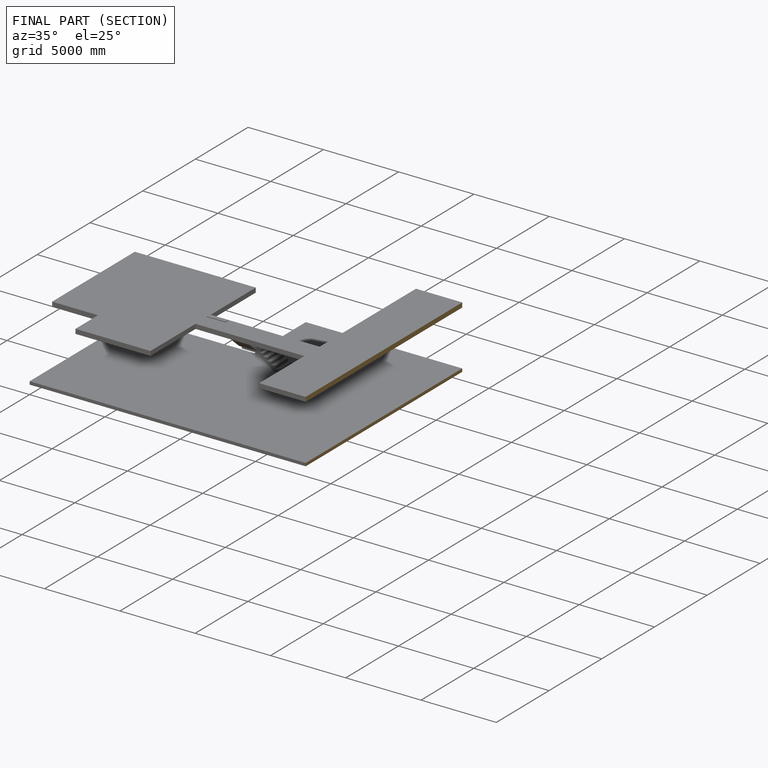
[diagram: finished part — half-section view (interior)]
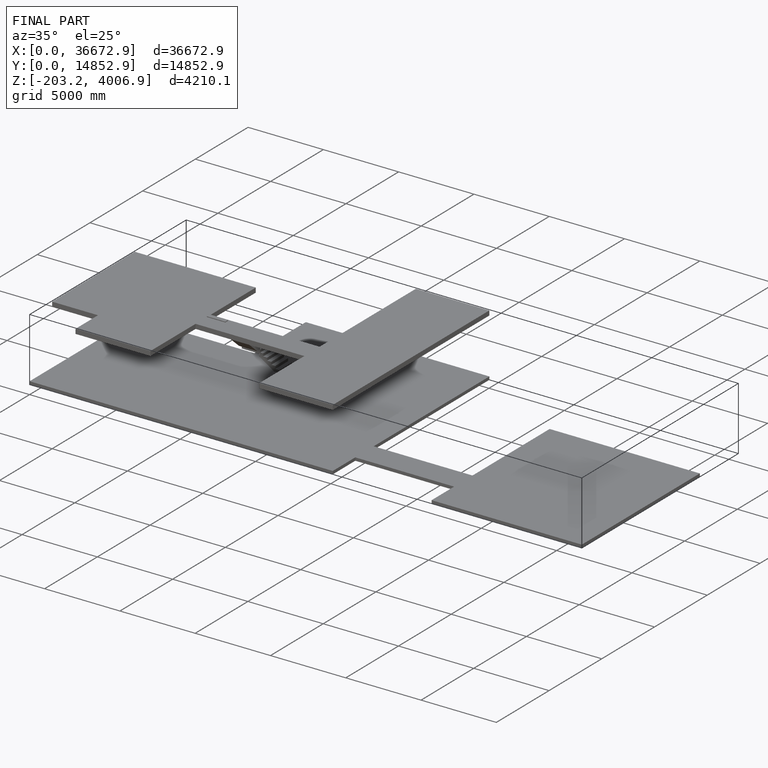
[diagram: finished part — iso view with bounding-box wireframe]
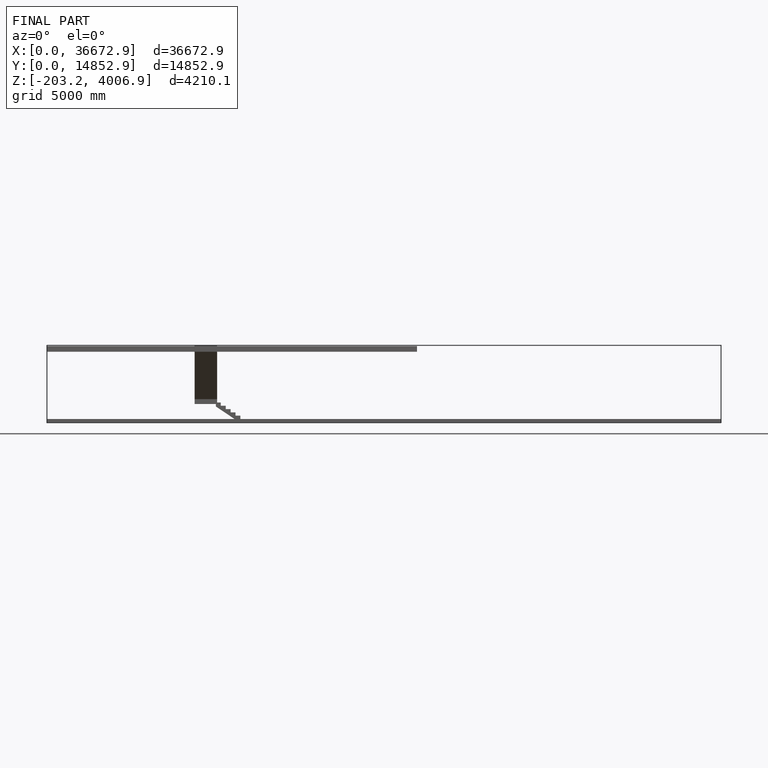
[diagram: finished part — front view with bounding-box wireframe]
